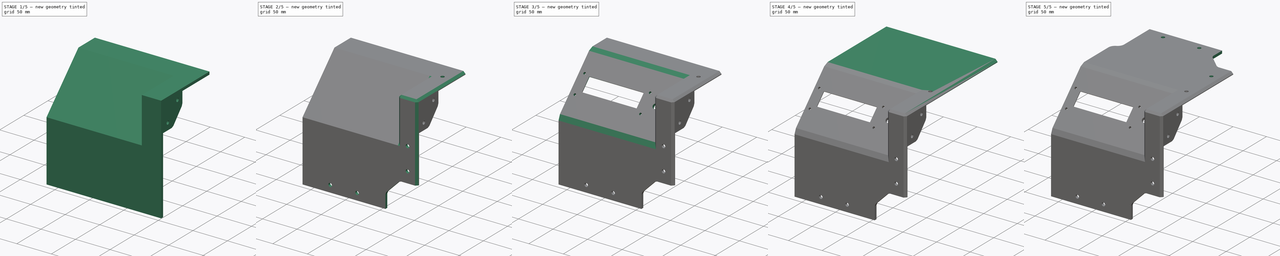
[diagram: build sequence overview — one tinted view per stage of 5, left to right]
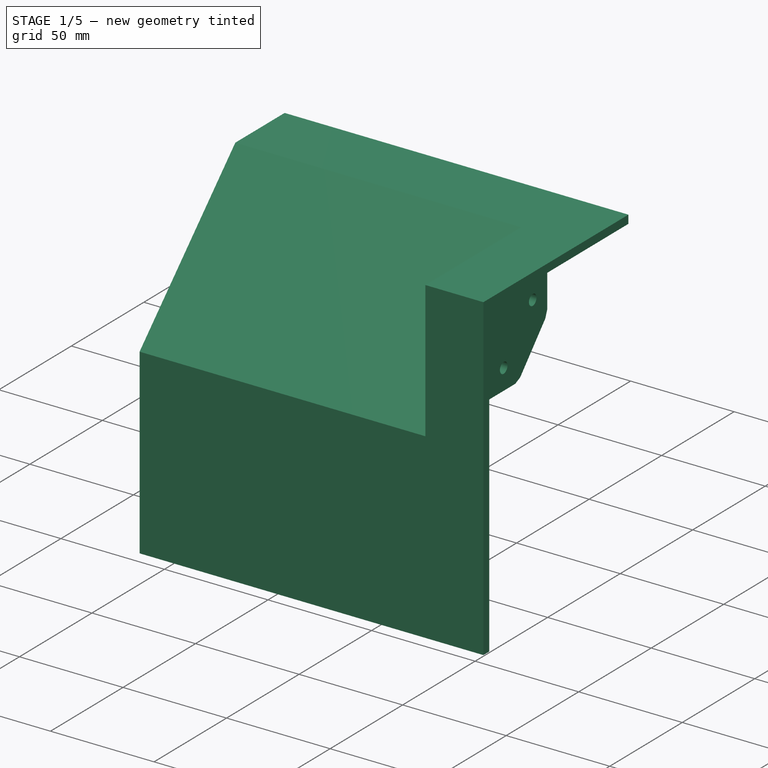
[diagram: stage 1 of 5 — iso view after this stage's code; geometry added in this stage tinted green]
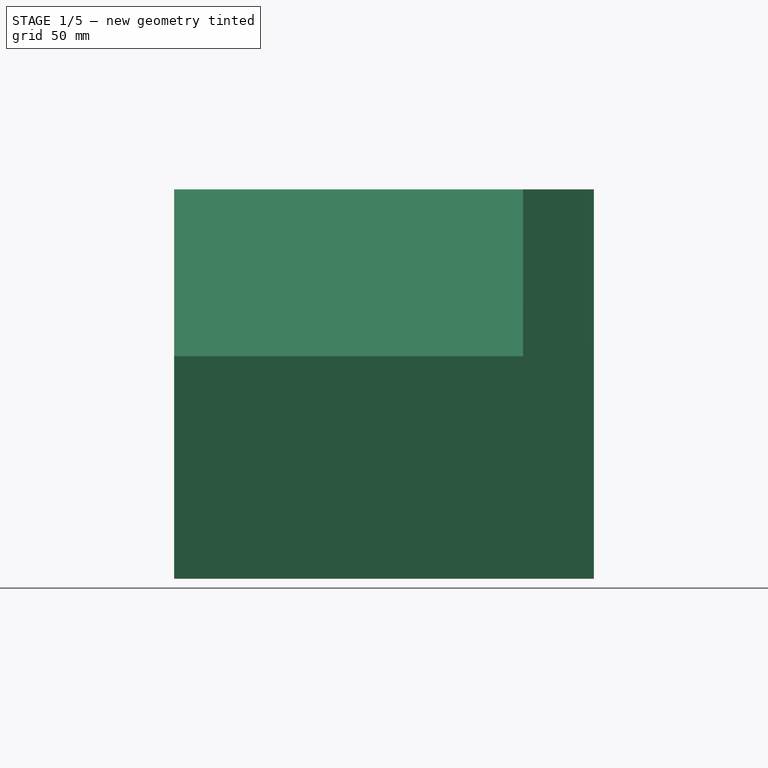
[diagram: stage 1 of 5 — front view after this stage's code; geometry added in this stage tinted green]
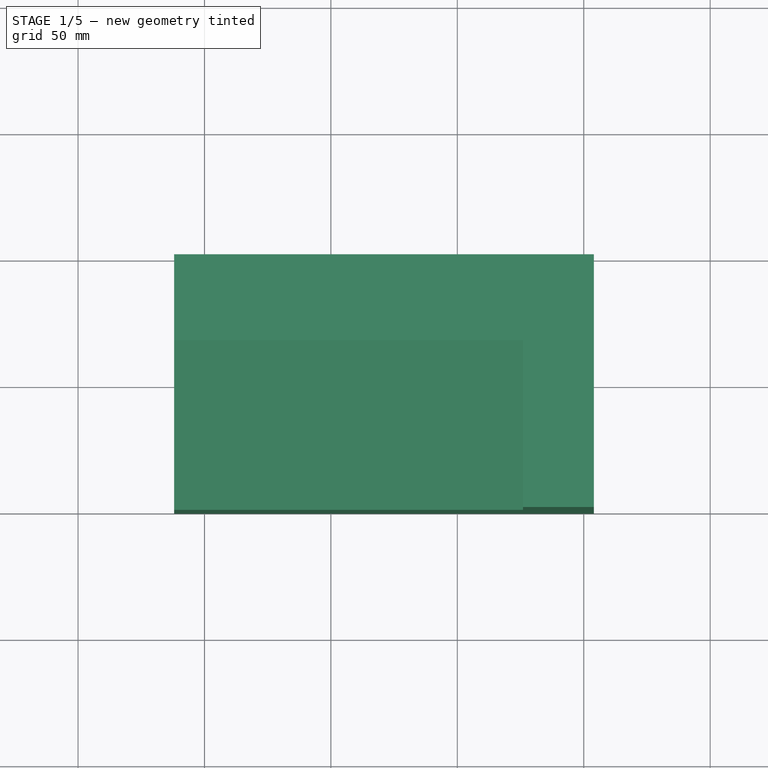
[diagram: stage 1 of 5 — top view after this stage's code; geometry added in this stage tinted green]
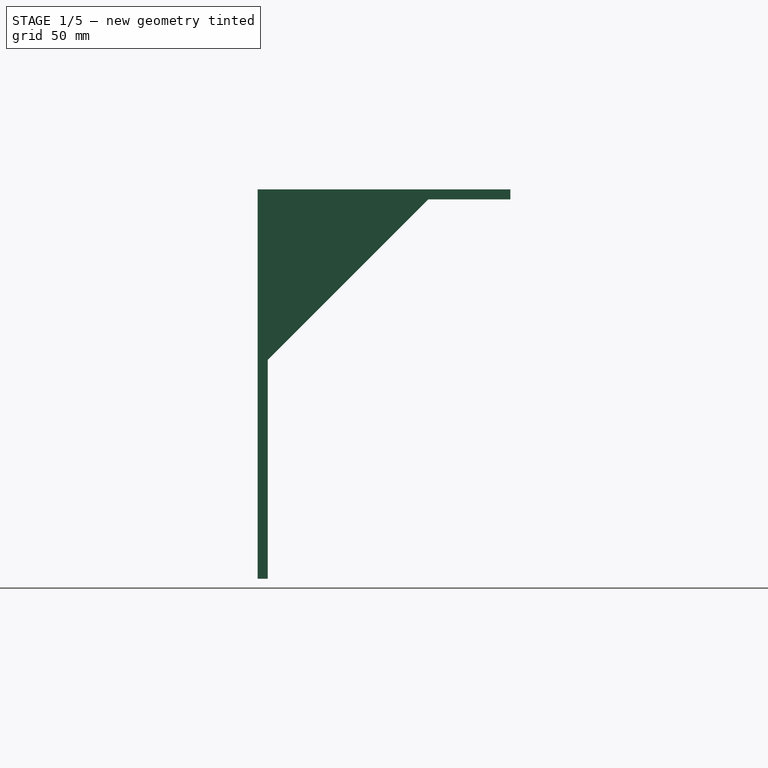
[diagram: stage 1 of 5 — right view after this stage's code; geometry added in this stage tinted green]
FCSTD DOCUMENT  (FreeCAD 1.0R39109 (Git))
Label: Screen_v3
License: All rights reserved
LicenseURL: https://en.wikipedia.org/wiki/All_rights_reserved
objects: Sketcher::SketchObject×14, PartDesign::Pad×7, PartDesign::Pocket×6, PartDesign::Hole×3, PartDesign::Chamfer×3, PartDesign::Fillet×1, PartDesign::Body×1
note: 89 computed .brp shape members not serialized (recipe doc carries the construction recipe); baked Part::Feature solids carry a one-line shape summary decoded from their .brp

FEATURE [Sketcher::SketchObject] Sketch
  ArcFitTolerance = 1e-06
  AttachmentSupport = -> [YZ_Plane]
  FullyConstrained = true
  MakeInternals = false
  MapMode = 5
  Placement = pos=(0,0,0) rot=(0.57735,0.57735,0.57735;2.0944rad)
  sketch-geometry (21):
    g0: LineSegment StartX=0 StartY=0 StartZ=0 EndX=0 EndY=-44 EndZ=0
    g1: LineSegment StartX=44 StartY=0 StartZ=0 EndX=0 EndY=0 EndZ=0
    g2: LineSegment StartX=0 StartY=-44 StartZ=0 EndX=21.9771 EndY=-44 EndZ=0
    g3: LineSegment StartX=44 StartY=0 StartZ=0 EndX=44 EndY=-20.0166 EndZ=0
    g4: LineSegment StartX=42.6658 StartY=-23.4676 StartZ=0 EndX=25.3608 EndY=-42.5032 EndZ=0
    g5: LineSegment [constr] StartX=24 StartY=-44 StartZ=0 EndX=24 EndY=-34 EndZ=0
    g6: LineSegment [constr] StartX=24 StartY=-34 StartZ=0 EndX=14 EndY=-34 EndZ=0
    g7: LineSegment [constr] StartX=14 StartY=-34 StartZ=0 EndX=14 EndY=-44 EndZ=0
    g8: LineSegment [constr] StartX=14 StartY=-44 StartZ=0 EndX=24 EndY=-44 EndZ=0
    g9: LineSegment [constr] StartX=44 StartY=-22 StartZ=0 EndX=44 EndY=-12 EndZ=0
    g10: LineSegment [constr] StartX=44 StartY=-12 StartZ=0 EndX=34 EndY=-12 EndZ=0
    g11: LineSegment [constr] StartX=34 StartY=-12 StartZ=0 EndX=34 EndY=-22 EndZ=0
    g12: LineSegment [constr] StartX=34 StartY=-22 StartZ=0 EndX=44 EndY=-22 EndZ=0
    g13: Circle CenterX=34 CenterY=-12 CenterZ=0 NormalX=0 NormalY=0 NormalZ=1 AngleXU=0 Radius=2.6
    g14: Circle CenterX=14 CenterY=-34 CenterZ=0 NormalX=0 NormalY=0 NormalZ=1 AngleXU=0 Radius=2.6
    g15: ArcOfCircle [constr] CenterX=21.9771 CenterY=-39.4271 CenterZ=0 NormalX=0 NormalY=0 NormalZ=1 AngleXU=0 Radius=4.57294 StartAngle=4.71239 EndAngle=5.54537
    g16: GeomPoint [constr] X=24 Y=-44 Z=0
    g17: LineSegment StartX=21.9771 StartY=-44 StartZ=0 EndX=25.3608 EndY=-42.5032 EndZ=0
    g18: ArcOfCircle [constr] CenterX=38.8696 CenterY=-20.0166 CenterZ=0 NormalX=0 NormalY=0 NormalZ=1 AngleXU=0 Radius=5.13039 StartAngle=5.54537 EndAngle=6.28319
    g19: GeomPoint [constr] X=44 Y=-22 Z=0
    g20: LineSegment StartX=42.6658 StartY=-23.4676 StartZ=0 EndX=44 EndY=-20.0166 EndZ=0
  constraints (52):
    c: Coincident(g1,g0)
    c: Vertical(g0)
    c: Horizontal(g1)
    c: Distance(g0,g1) = 44
    c: Distance(g0,g1) = 44
    c: Coincident(g0,g-1)
    c: Distance(g2,g16) = 24
    c: Coincident(g2,g0)
    c: Horizontal(g2)
    c: Distance(g3,g19) = 22
    c: Coincident(g3,g1)
    c: Vertical(g3)
    c: Coincident(g5,g6)
    c: Coincident(g6,g7)
    c: Coincident(g7,g8)
    c: Coincident(g8,g5)
    c: Vertical(g5)
    c: Vertical(g7)
    c: Horizontal(g6)
    c: Horizontal(g8)
    c: Distance(g5,g7) = 10
    c: Distance(g6,g8) = 10
    c: Coincident(g5,g16)
    c: Coincident(g9,g10)
    c: Coincident(g10,g11)
    c: Coincident(g11,g12)
    c: Coincident(g12,g9)
    c: Vertical(g9)
    c: Vertical(g11)
    c: Horizontal(g10)
    c: Horizontal(g12)
    c: Distance(g9,g11) = 10
    c: Distance(g10,g12) = 10
    c: Coincident(g9,g19)
    c: Diameter(g13) = 5.2
    c: Coincident(g13,g10)
    c: Diameter(g14) = 5.2
    c: Coincident(g14,g6)
    c: PointOnObject(g16,g2)
    c: PointOnObject(g16,g4)
    c: Tangent(g2,g15) = -1.5708
    c: Tangent(g4,g15) = 1.5708
    c: Coincident(g17,g2)
    c: Coincident(g17,g4)
    c: PointOnObject(g19,g4)
    c: PointOnObject(g19,g3)
    c: Tangent(g4,g18) = 1.5708
    c: Tangent(g3,g18) = 1.5708
    c: Coincident(g20,g4)
    c: Coincident(g20,g3)
    c: Distance(g17,g17) = 3.7
    c: Distance(g20,g20) = 3.7
FEATURE [PartDesign::Pad] Pad
  Direction = (1,0,0)
  Length = 4
  Length2 = 10
  Placement = pos=(0,0,0) rot=(1,1,1;2.0944rad)
  Profile = -> Sketch
  ReferenceAxis = -> Sketch [N_Axis]
  Refine = true
  Suppressed = false
  Type = 0
FEATURE [Sketcher::SketchObject] Sketch001
  ArcFitTolerance = 1e-06
  AttachmentSupport = -> [Pad]
  FullyConstrained = true
  MakeInternals = false
  MapMode = 5
  Placement = pos=(4,0,0) rot=(0.57735,0.57735,0.57735;2.0944rad)
  sketch-geometry (6):
    g0: LineSegment StartX=0 StartY=0 StartZ=0 EndX=100 EndY=0 EndZ=0
    g1: LineSegment StartX=100 StartY=0 StartZ=0 EndX=100 EndY=-4 EndZ=0
    g2: LineSegment StartX=100 StartY=-4 StartZ=0 EndX=4 EndY=-4 EndZ=0
    g3: LineSegment StartX=0 StartY=0 StartZ=0 EndX=0 EndY=-154 EndZ=0
    g4: LineSegment StartX=0 StartY=-154 StartZ=0 EndX=4 EndY=-154 EndZ=0
    g5: LineSegment StartX=4 StartY=-154 StartZ=0 EndX=4 EndY=-4 EndZ=0
  constraints (17):
    c: Distance(g0) = 100
    c: Coincident(g0,g-1)
    c: PointOnObject(g0,g-1)
    c: Distance(g1) = 4
    c: Coincident(g1,g0)
    c: Vertical(g1)
    c: Distance(g2) = 96
    c: Coincident(g2,g1)
    c: Horizontal(g2)
    c: Distance(g3) = 154
    c: Coincident(g3,g0)
    c: Vertical(g3)
    c: Distance(g4) = 4
    c: Coincident(g4,g3)
    c: Horizontal(g4)
    c: Coincident(g5,g4)
    c: Coincident(g5,g2)
FEATURE [PartDesign::Pad] Pad001
  BaseFeature = -> Pad
  Direction = (1,0,0)
  Length = 24
  Length2 = 10
  Placement = pos=(0,0,0) rot=(1,1,1;2.0944rad)
  Profile = -> Sketch001
  ReferenceAxis = -> Sketch001 [N_Axis]
  Refine = true
  Reversed = true
  Suppressed = false
  Type = 0
FEATURE [Sketcher::SketchObject] Sketch002
  ArcFitTolerance = 1e-06
  AttachmentSupport = -> [Pad001]
  FullyConstrained = true
  MakeInternals = false
  MapMode = 5
  Placement = pos=(-20,0,0) rot=(0.57735,0.57735,-0.57735;4.18879rad)
  sketch-geometry (34):
    g0: LineSegment StartX=0 StartY=0 StartZ=0 EndX=44 EndY=0 EndZ=0
    g1: LineSegment [constr] StartX=44 StartY=0 StartZ=0 EndX=44 EndY=44 EndZ=0
    g2: LineSegment [constr] StartX=44 StartY=44 StartZ=0 EndX=0 EndY=44 EndZ=0
    g3: LineSegment StartX=0 StartY=44 StartZ=0 EndX=0 EndY=0 EndZ=0
    g4: LineSegment [constr] StartX=0 StartY=44 StartZ=0 EndX=20.9176 EndY=44 EndZ=0
    g5: LineSegment [constr] StartX=44 StartY=0 StartZ=0 EndX=44 EndY=20.9176 EndZ=0
    g6: LineSegment [constr] StartX=43.2346 StartY=22.7654 StartZ=0 EndX=22.7654 EndY=43.2346 EndZ=0
    g7: LineSegment [constr] StartX=22 StartY=44 StartZ=0 EndX=12 EndY=44 EndZ=0
    g8: LineSegment [constr] StartX=12 StartY=44 StartZ=0 EndX=12 EndY=34 EndZ=0
    g9: LineSegment [constr] StartX=12 StartY=34 StartZ=0 EndX=22 EndY=34 EndZ=0
    g10: LineSegment [constr] StartX=22 StartY=34 StartZ=0 EndX=22 EndY=44 EndZ=0
    g11: LineSegment [constr] StartX=44 StartY=22 StartZ=0 EndX=34 EndY=22 EndZ=0
    g12: LineSegment [constr] StartX=34 StartY=22 StartZ=0 EndX=34 EndY=12 EndZ=0
    g13: LineSegment [constr] StartX=34 StartY=12 StartZ=0 EndX=44 EndY=12 EndZ=0
    g14: LineSegment [constr] StartX=44 StartY=12 StartZ=0 EndX=44 EndY=22 EndZ=0
    g15: ArcOfCircle [constr] CenterX=20.9176 CenterY=41.3869 CenterZ=0 NormalX=0 NormalY=0 NormalZ=1 AngleXU=0 Radius=2.61313 StartAngle=0.785398 EndAngle=1.5708
    g16: GeomPoint [constr] X=22 Y=44 Z=0
    g17: LineSegment [constr] StartX=22.7654 StartY=43.2346 StartZ=0 EndX=20.9176 EndY=44 EndZ=0
    g18: ArcOfCircle [constr] CenterX=41.3869 CenterY=20.9176 CenterZ=0 NormalX=0 NormalY=0 NormalZ=1 AngleXU=0 Radius=2.61313 StartAngle=3e-16 EndAngle=0.785398
    g19: GeomPoint [constr] X=44 Y=22 Z=0
    g20: LineSegment [constr] StartX=44 StartY=20.9176 StartZ=0 EndX=43.2346 EndY=22.7654 EndZ=0
    g21: LineSegment StartX=44 StartY=0 StartZ=0 EndX=100 EndY=0 EndZ=0
    g22: LineSegment StartX=100 StartY=0 StartZ=0 EndX=100 EndY=4 EndZ=0
    g23: LineSegment [constr] StartX=100 StartY=4 StartZ=0 EndX=48 EndY=4 EndZ=0
    g24: LineSegment StartX=0 StartY=44 StartZ=0 EndX=0 EndY=154 EndZ=0
    g25: LineSegment StartX=0 StartY=154 StartZ=0 EndX=4 EndY=154 EndZ=0
    g26: LineSegment [constr] StartX=4 StartY=154 StartZ=0 EndX=4 EndY=48 EndZ=0
    g27: LineSegment [constr] StartX=48 StartY=4 StartZ=0 EndX=48 EndY=23.5 EndZ=0
    g28: LineSegment [constr] StartX=4 StartY=48 StartZ=0 EndX=23.5 EndY=48 EndZ=0
    g29: LineSegment StartX=23.5 StartY=48 StartZ=0 EndX=48 EndY=23.5 EndZ=0
    g30: LineSegment StartX=23.5 StartY=48 StartZ=0 EndX=4 EndY=67.5 EndZ=0
    g31: LineSegment StartX=48 StartY=23.5 StartZ=0 EndX=67.5 EndY=4 EndZ=0
    g32: LineSegment StartX=4 StartY=67.5 StartZ=0 EndX=4 EndY=154 EndZ=0
    g33: LineSegment StartX=67.5 StartY=4 StartZ=0 EndX=100 EndY=4 EndZ=0
  constraints (87):
    c: Coincident(g0,g1)
    c: Coincident(g1,g2)
    c: Coincident(g2,g3)
    c: Coincident(g3,g0)
    c: Horizontal(g0)
    c: Horizontal(g2)
    c: Vertical(g1)
    c: Vertical(g3)
    c: Distance(g1,g3) = 44
    c: Distance(g0,g2) = 44
    c: Coincident(g0,g-1)
    c: Coincident(g4,g2)
    c: Symmetric(g2,g2,g16)
    c: Coincident(g5,g0)
    c: Symmetric(g1,g1,g19)
    c: Coincident(g7,g8)
    c: Coincident(g8,g9)
    c: Coincident(g9,g10)
    c: Coincident(g10,g7)
    c: Horizontal(g7)
    c: Horizontal(g9)
    c: Vertical(g8)
    c: Vertical(g10)
    c: Distance(g8,g10) = 10
    c: Distance(g7,g9) = 10
    c: Coincident(g7,g16)
    c: Coincident(g11,g12)
    c: Coincident(g12,g13)
    c: Coincident(g13,g14)
    c: Coincident(g14,g11)
    c: Horizontal(g11)
    c: Horizontal(g13)
    c: Vertical(g12)
    c: Vertical(g14)
    c: Distance(g12,g14) = 10
    c: Distance(g11,g13) = 10
    c: Coincident(g11,g19)
    c: PointOnObject(g16,g4)
    c: PointOnObject(g16,g6)
    c: Tangent(g4,g15) = 1.5708
    c: Tangent(g6,g15) = -1.5708
    c: Coincident(g17,g4)
    c: Coincident(g17,g6)
    c: PointOnObject(g19,g6)
    c: PointOnObject(g19,g5)
    c: Tangent(g6,g18) = -1.5708
    c: Tangent(g5,g18) = -1.5708
    c: Coincident(g20,g6)
    c: Coincident(g20,g5)
    c: Distance(g17,g17) = 2
    c: Distance(g20,g20) = 2
    c: Distance(g21) = 56
    c: Coincident(g21,g0)
    c: PointOnObject(g21,g-1)
    c: Distance(g22) = 4
    c: Coincident(g22,g21)
    c: Vertical(g22)
    c: Distance(g23) = 52
    c: Coincident(g23,g22)
    c: Horizontal(g23)
    c: Distance(g24) = 110
    c: Coincident(g24,g2)
    c: Vertical(g24)
    c: Distance(g25) = 4
    c: Coincident(g25,g24)
    c: Horizontal(g25)
    c: Distance(g26) = 106
    c: Coincident(g26,g25)
    c: Vertical(g26)
    c: Distance(g27) = 19.5
    c: Coincident(g27,g23)
    c: Vertical(g27)
    c: Distance(g28) = 19.5
    c: Coincident(g28,g26)
    c: Horizontal(g28)
    c: Coincident(g29,g28)
    c: Coincident(g29,g27)
    c: Angle(g-1,g30) = 2.35619
    c: Coincident(g30,g28)
    c: PointOnObject(g30,g26)
    c: Angle(g-1,g31) = -0.785398
    c: Coincident(g31,g27)
    c: PointOnObject(g31,g23)
    c: Coincident(g32,g30)
    c: Coincident(g32,g25)
    c: Coincident(g33,g31)
    c: Coincident(g33,g22)
FEATURE [PartDesign::Pad] Pad002
  BaseFeature = -> Pad001
  Direction = (-1,0,0)
  Length = 4
  Length2 = 10
  Placement = pos=(0,0,0) rot=(1,1,1;2.0944rad)
  Profile = -> Sketch002
  ReferenceAxis = -> Sketch002 [N_Axis]
  Refine = true
  Suppressed = false
  Type = 0
FEATURE [Sketcher::SketchObject] Sketch003
  ArcFitTolerance = 1e-06
  AttachmentSupport = -> [Pad002]
  FullyConstrained = true
  MakeInternals = false
  MapMode = 5
  Placement = pos=(-24,0,0) rot=(0.57735,0.57735,-0.57735;4.18879rad)
  sketch-geometry (39):
    g0: LineSegment [constr] StartX=0 StartY=0 StartZ=0 EndX=44 EndY=0 EndZ=0
    g1: LineSegment [constr] StartX=44 StartY=0 StartZ=0 EndX=44 EndY=44 EndZ=0
    g2: LineSegment [constr] StartX=44 StartY=44 StartZ=0 EndX=0 EndY=44 EndZ=0
    g3: LineSegment [constr] StartX=0 StartY=44 StartZ=0 EndX=0 EndY=0 EndZ=0
    g4: LineSegment [constr] StartX=0 StartY=44 StartZ=0 EndX=20.9176 EndY=44 EndZ=0
    g5: LineSegment [constr] StartX=44 StartY=0 StartZ=0 EndX=44 EndY=20.9176 EndZ=0
    g6: LineSegment [constr] StartX=43.2346 StartY=22.7654 StartZ=0 EndX=22.7654 EndY=43.2346 EndZ=0
    g7: LineSegment [constr] StartX=22 StartY=44 StartZ=0 EndX=12 EndY=44 EndZ=0
    g8: LineSegment [constr] StartX=12 StartY=44 StartZ=0 EndX=12 EndY=34 EndZ=0
    g9: LineSegment [constr] StartX=12 StartY=34 StartZ=0 EndX=22 EndY=34 EndZ=0
    g10: LineSegment [constr] StartX=22 StartY=34 StartZ=0 EndX=22 EndY=44 EndZ=0
    g11: LineSegment [constr] StartX=44 StartY=22 StartZ=0 EndX=34 EndY=22 EndZ=0
    g12: LineSegment [constr] StartX=34 StartY=22 StartZ=0 EndX=34 EndY=12 EndZ=0
    g13: LineSegment [constr] StartX=34 StartY=12 StartZ=0 EndX=44 EndY=12 EndZ=0
    g14: LineSegment [constr] StartX=44 StartY=12 StartZ=0 EndX=44 EndY=22 EndZ=0
    g15: ArcOfCircle [constr] CenterX=20.9176 CenterY=41.3869 CenterZ=0 NormalX=0 NormalY=0 NormalZ=1 AngleXU=0 Radius=2.61313 StartAngle=0.785398 EndAngle=1.5708
    g16: GeomPoint [constr] X=22 Y=44 Z=0
    g17: LineSegment [constr] StartX=22.7654 StartY=43.2346 StartZ=0 EndX=20.9176 EndY=44 EndZ=0
    g18: ArcOfCircle [constr] CenterX=41.3869 CenterY=20.9176 CenterZ=0 NormalX=0 NormalY=0 NormalZ=1 AngleXU=0 Radius=2.61313 StartAngle=0 EndAngle=0.785398
    g19: GeomPoint [constr] X=44 Y=22 Z=0
    g20: LineSegment [constr] StartX=44 StartY=20.9176 StartZ=0 EndX=43.2346 EndY=22.7654 EndZ=0
    g21: LineSegment [constr] StartX=44 StartY=0 StartZ=0 EndX=100 EndY=0 EndZ=0
    g22: LineSegment StartX=100 StartY=0 StartZ=0 EndX=100 EndY=4 EndZ=0
    g23: LineSegment [constr] StartX=100 StartY=4 StartZ=0 EndX=48 EndY=4 EndZ=0
    g24: LineSegment [constr] StartX=0 StartY=44 StartZ=0 EndX=0 EndY=154 EndZ=0
    g25: LineSegment StartX=0 StartY=154 StartZ=0 EndX=4 EndY=154 EndZ=0
    g26: LineSegment [constr] StartX=4 StartY=154 StartZ=0 EndX=4 EndY=48 EndZ=0
    g27: LineSegment [constr] StartX=48 StartY=4 StartZ=0 EndX=48 EndY=23.5 EndZ=0
    g28: LineSegment [constr] StartX=4 StartY=48 StartZ=0 EndX=23.5 EndY=48 EndZ=0
    g29: LineSegment StartX=23.5 StartY=48 StartZ=0 EndX=48 EndY=23.5 EndZ=0
    g30: LineSegment StartX=23.5 StartY=48 StartZ=0 EndX=4 EndY=67.5 EndZ=0
    g31: LineSegment StartX=48 StartY=23.5 StartZ=0 EndX=67.5 EndY=4 EndZ=0
    g32: LineSegment StartX=4 StartY=67.5 StartZ=0 EndX=4 EndY=154 EndZ=0
    g33: LineSegment StartX=67.5 StartY=4 StartZ=0 EndX=100 EndY=4 EndZ=0
    g34: LineSegment StartX=44 StartY=22 StartZ=0 EndX=66 EndY=0 EndZ=0
    g35: LineSegment StartX=22 StartY=44 StartZ=0 EndX=0 EndY=66 EndZ=0
    g36: LineSegment StartX=22 StartY=44 StartZ=0 EndX=44 EndY=22 EndZ=0
    g37: LineSegment StartX=0 StartY=66 StartZ=0 EndX=0 EndY=154 EndZ=0
    g38: LineSegment StartX=66 StartY=0 StartZ=0 EndX=100 EndY=0 EndZ=0
  constraints (99):
    c: Coincident(g0,g1)
    c: Coincident(g1,g2)
    c: Coincident(g2,g3)
    c: Coincident(g3,g0)
    c: Horizontal(g0)
    c: Horizontal(g2)
    c: Vertical(g1)
    c: Vertical(g3)
    c: Distance(g1,g3) = 44
    c: Distance(g0,g2) = 44
    c: Coincident(g0,g-1)
    c: Coincident(g4,g2)
    c: Symmetric(g2,g2,g16)
    c: Coincident(g5,g0)
    c: Symmetric(g1,g1,g19)
    c: Coincident(g7,g8)
    c: Coincident(g8,g9)
    c: Coincident(g9,g10)
    c: Coincident(g10,g7)
    c: Horizontal(g7)
    c: Horizontal(g9)
    c: Vertical(g8)
    c: Vertical(g10)
    c: Distance(g8,g10) = 10
    c: Distance(g7,g9) = 10
    c: Coincident(g7,g16)
    c: Coincident(g11,g12)
    c: Coincident(g12,g13)
    c: Coincident(g13,g14)
    c: Coincident(g14,g11)
    c: Horizontal(g11)
    c: Horizontal(g13)
    c: Vertical(g12)
    c: Vertical(g14)
    c: Distance(g12,g14) = 10
    c: Distance(g11,g13) = 10
    c: Coincident(g11,g19)
    c: PointOnObject(g16,g4)
    c: PointOnObject(g16,g6)
    c: Tangent(g4,g15) = 1.5708
    c: Tangent(g6,g15) = -1.5708
    c: Coincident(g17,g4)
    c: Coincident(g17,g6)
    c: PointOnObject(g19,g6)
    c: PointOnObject(g19,g5)
    c: Tangent(g6,g18) = -1.5708
    c: Tangent(g5,g18) = -1.5708
    c: Coincident(g20,g6)
    c: Coincident(g20,g5)
    c: Distance(g17,g17) = 2
    c: Distance(g20,g20) = 2
    c: Distance(g21) = 56
    c: Coincident(g21,g0)
    c: PointOnObject(g21,g-1)
    c: Distance(g22) = 4
    c: Coincident(g22,g21)
    c: Vertical(g22)
    c: Distance(g23) = 52
    c: Coincident(g23,g22)
    c: Horizontal(g23)
    c: Distance(g24) = 110
    c: Coincident(g24,g2)
    c: Vertical(g24)
    c: Distance(g25) = 4
    c: Coincident(g25,g24)
    c: Horizontal(g25)
    c: Distance(g26) = 106
    c: Coincident(g26,g25)
    c: Vertical(g26)
    c: Distance(g27) = 19.5
    c: Coincident(g27,g23)
    c: Vertical(g27)
    c: Distance(g28) = 19.5
    c: Coincident(g28,g26)
    c: Horizontal(g28)
    c: Coincident(g29,g28)
    c: Coincident(g29,g27)
    c: Angle(g-1,g30) = 2.35619
    c: Coincident(g30,g28)
    c: PointOnObject(g30,g26)
    c: Angle(g-1,g31) = -0.785398
    c: Coincident(g31,g27)
    c: PointOnObject(g31,g23)
    c: Coincident(g32,g30)
    c: Coincident(g32,g25)
    c: Coincident(g33,g31)
    c: Coincident(g33,g22)
    c: Angle(g-1,g34) = -0.785398
    c: Coincident(g34,g11)
    c: PointOnObject(g34,g21)
    c: Angle(g-1,g35) = 2.35619
    c: Coincident(g35,g7)
    c: PointOnObject(g35,g24)
    c: Coincident(g36,g7)
    c: Coincident(g36,g11)
    c: Coincident(g37,g35)
    c: Coincident(g37,g24)
    c: Coincident(g38,g34)
    c: Coincident(g38,g21)
FEATURE [PartDesign::Pad] Pad003
  BaseFeature = -> Pad002
  Direction = (-1,0,0)
  Length = 138
  Length2 = 10
  Placement = pos=(0,0,0) rot=(1,1,1;2.0944rad)
  Profile = -> Sketch003
  ReferenceAxis = -> Sketch003 [N_Axis]
  Refine = true
  Suppressed = false
  Type = 0
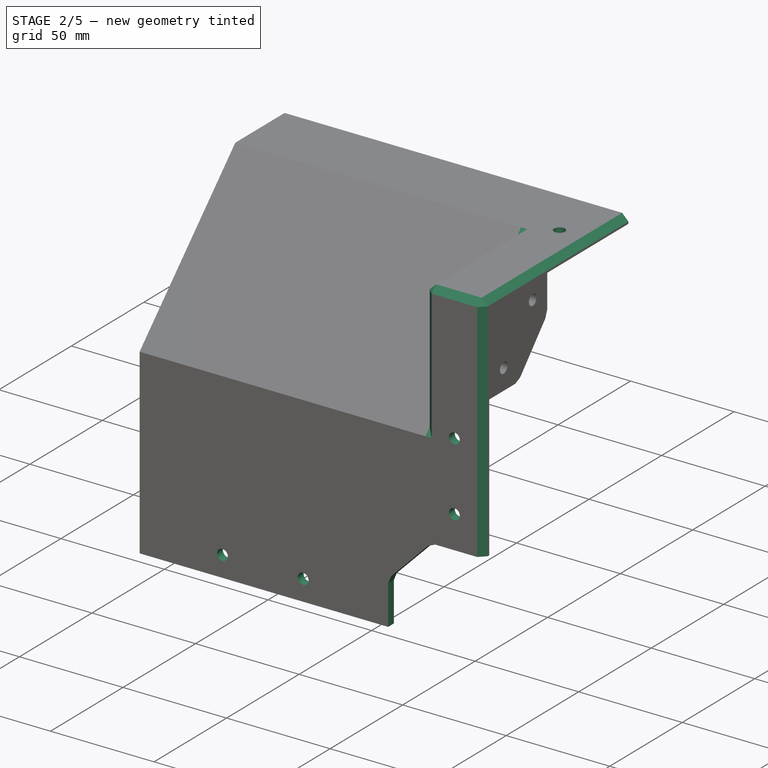
[diagram: stage 2 of 5 — iso view after this stage's code; geometry added in this stage tinted green]
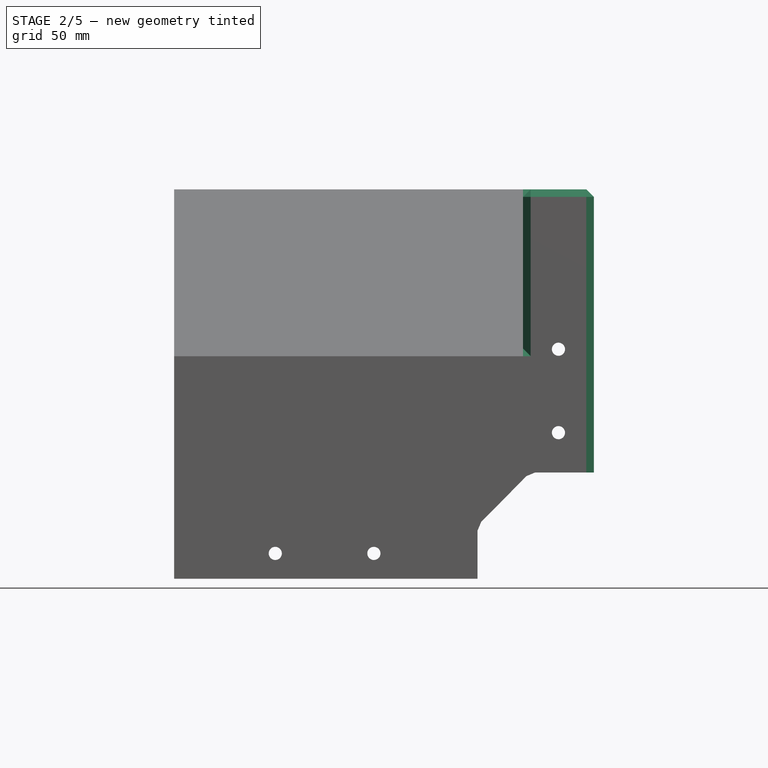
[diagram: stage 2 of 5 — front view after this stage's code; geometry added in this stage tinted green]
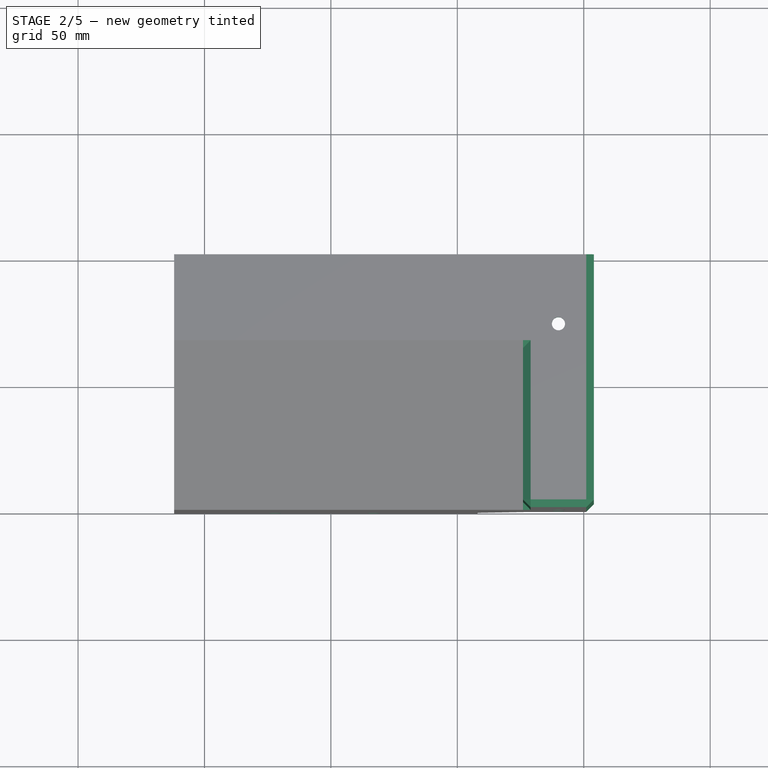
[diagram: stage 2 of 5 — top view after this stage's code; geometry added in this stage tinted green]
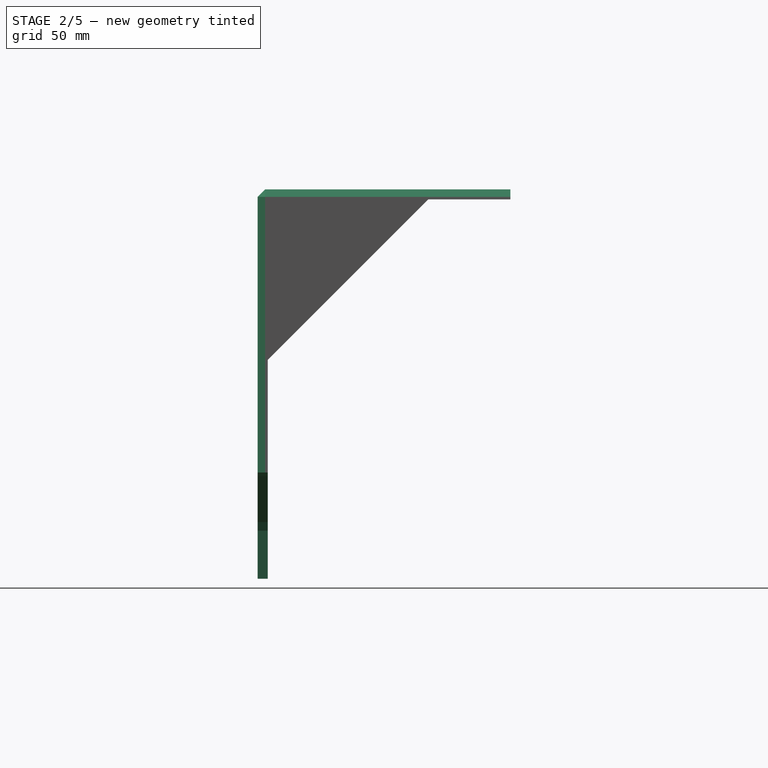
[diagram: stage 2 of 5 — right view after this stage's code; geometry added in this stage tinted green]
FEATURE [Sketcher::SketchObject] Sketch004
  ArcFitTolerance = 1e-06
  AttachmentSupport = -> [Pad003]
  FullyConstrained = true
  MakeInternals = false
  MapMode = 5
  Placement = pos=(0,-1.23e-14,0) rot=(0.57735,0.57735,-0.57735;2.0944rad)
  sketch-geometry (24):
    g0: LineSegment [constr] StartX=0 StartY=0 StartZ=0 EndX=154 EndY=0 EndZ=0
    g1: LineSegment [constr] StartX=154 StartY=0 StartZ=0 EndX=154 EndY=4 EndZ=0
    g2: LineSegment [constr] StartX=154 StartY=4 StartZ=0 EndX=0 EndY=4 EndZ=0
    g3: LineSegment [constr] StartX=0 StartY=4 StartZ=0 EndX=0 EndY=0 EndZ=0
    g4: LineSegment [constr] StartX=154 StartY=4 StartZ=0 EndX=115 EndY=4 EndZ=0
    g5: LineSegment [constr] StartX=115 StartY=4 StartZ=0 EndX=115 EndY=-38 EndZ=0
    g6: LineSegment [constr] StartX=115 StartY=-38 StartZ=0 EndX=154 EndY=-38 EndZ=0
    g7: LineSegment [constr] StartX=154 StartY=-38 StartZ=0 EndX=154 EndY=4 EndZ=0
    g8: LineSegment [constr] StartX=115 StartY=4 StartZ=0 EndX=115 EndY=-17 EndZ=0
    g9: LineSegment [constr] StartX=154 StartY=-38 StartZ=0 EndX=134.5 EndY=-38 EndZ=0
    g10: LineSegment [constr] StartX=134.5 StartY=-38 StartZ=0 EndX=115 EndY=-17 EndZ=0
    g11: LineSegment [constr] StartX=115 StartY=4 StartZ=0 EndX=112 EndY=4 EndZ=0
    g12: LineSegment [constr] StartX=154 StartY=-38 StartZ=0 EndX=154 EndY=-42 EndZ=0
    g13: LineSegment StartX=112 StartY=4 StartZ=0 EndX=112 EndY=-19.2352 EndZ=0
    g14: LineSegment StartX=154 StartY=-42 StartZ=0 EndX=135 EndY=-42 EndZ=0
    g15: LineSegment StartX=131.578 StartY=-40.5939 StartZ=0 EndX=113.426 EndY=-22.6495 EndZ=0
    g16: LineSegment StartX=112 StartY=4 StartZ=0 EndX=154 EndY=4 EndZ=0
    g17: LineSegment StartX=154 StartY=4 StartZ=0 EndX=154 EndY=-42 EndZ=0
    g18: ArcOfCircle [constr] CenterX=116.801 CenterY=-19.2352 CenterZ=0 NormalX=0 NormalY=0 NormalZ=1 AngleXU=0 Radius=4.801 StartAngle=3.14159 EndAngle=3.93274
    g19: GeomPoint [constr] X=112 Y=-21.24 Z=0
    g20: LineSegment StartX=112 StartY=-19.2352 StartZ=0 EndX=113.426 EndY=-22.6495 EndZ=0
    g21: ArcOfCircle [constr] CenterX=135 CenterY=-37.1319 CenterZ=0 NormalX=0 NormalY=0 NormalZ=1 AngleXU=0 Radius=4.86807 StartAngle=3.93274 EndAngle=4.71239
    g22: GeomPoint [constr] X=133 Y=-42 Z=0
    g23: LineSegment StartX=131.578 StartY=-40.5939 StartZ=0 EndX=135 EndY=-42 EndZ=0
  constraints (58):
    c: Coincident(g0,g1)
    c: Coincident(g1,g2)
    c: Coincident(g2,g3)
    c: Coincident(g3,g0)
    c: Horizontal(g0)
    c: Horizontal(g2)
    c: Vertical(g1)
    c: Vertical(g3)
    c: Distance(g1,g3) = 154
    c: Distance(g0,g2) = 4
    c: Coincident(g0,g-1)
    c: Coincident(g4,g5)
    c: Coincident(g5,g6)
    c: Coincident(g6,g7)
    c: Coincident(g7,g4)
    c: Horizontal(g4)
    c: Horizontal(g6)
    c: Vertical(g5)
    c: Vertical(g7)
    c: Distance(g5,g7) = 39
    c: Distance(g4,g6) = 42
    c: Coincident(g4,g1)
    c: Coincident(g8,g4)
    c: Symmetric(g5,g5,g8)
    c: Coincident(g9,g6)
    c: Symmetric(g6,g6,g9)
    c: Coincident(g10,g9)
    c: Coincident(g10,g8)
    c: Distance(g11) = 3
    c: Coincident(g11,g4)
    c: PointOnObject(g11,g2)
    c: Distance(g12) = 4
    c: Coincident(g12,g6)
    c: Vertical(g12)
    c: Distance(g13,g19) = 25.24
    c: Coincident(g13,g11)
    c: Vertical(g13)
    c: Distance(g14,g22) = 21
    c: Coincident(g14,g12)
    c: Horizontal(g14)
    c: Coincident(g16,g11)
    c: Coincident(g16,g1)
    c: Coincident(g17,g1)
    c: Coincident(g17,g12)
    c: PointOnObject(g19,g13)
    c: PointOnObject(g19,g15)
    c: Tangent(g13,g18) = -1.5708
    c: Tangent(g15,g18) = 1.5708
    c: Coincident(g20,g13)
    c: Coincident(g20,g15)
    c: PointOnObject(g22,g15)
    c: PointOnObject(g22,g14)
    c: Tangent(g15,g21) = 1.5708
    c: Tangent(g14,g21) = 1.5708
    c: Coincident(g23,g15)
    c: Coincident(g23,g14)
    c: Distance(g23,g23) = 3.7
    c: Distance(g20,g20) = 3.7
FEATURE [PartDesign::Pocket] Pocket
  BaseFeature = -> Pad003
  Direction = (0,1,0)
  Length = 5
  Length2 = 5
  Placement = pos=(0,0,0) rot=(1,1,1;2.0944rad)
  Profile = -> Sketch004
  ReferenceAxis = -> Sketch004 [N_Axis]
  Refine = true
  Suppressed = false
  Type = 0
FEATURE [Sketcher::SketchObject] Sketch005
  ArcFitTolerance = 1e-06
  AttachmentSupport = -> [Pocket]
  FullyConstrained = true
  MakeInternals = false
  MapMode = 5
  Placement = pos=(7.5e-15,33,-33) rot=(0.357407,0.357407,-0.862856;1.71777rad)
  sketch-geometry (27):
    g0: LineSegment [constr] StartX=0 StartY=0 StartZ=0 EndX=0 EndY=-24 EndZ=0
    g1: LineSegment [constr] StartX=0 StartY=-24 StartZ=0 EndX=0 EndY=-162 EndZ=0
    g2: LineSegment [constr] StartX=-18.75 StartY=-160.5 StartZ=0 EndX=18.75 EndY=-160.5 EndZ=0
    g3: LineSegment [constr] StartX=18.75 StartY=-160.5 StartZ=0 EndX=18.75 EndY=-25.5 EndZ=0
    g4: LineSegment [constr] StartX=18.75 StartY=-25.5 StartZ=0 EndX=-18.75 EndY=-25.5 EndZ=0
    g5: LineSegment [constr] StartX=-18.75 StartY=-25.5 StartZ=0 EndX=-18.75 EndY=-160.5 EndZ=0
    g6: GeomPoint [constr] X=0 Y=-93 Z=0
    g7: LineSegment [constr] StartX=-18.75 StartY=-160.5 StartZ=0 EndX=-14.25 EndY=-160.5 EndZ=0
    g8: LineSegment [constr] StartX=-14.25 StartY=-160.5 StartZ=0 EndX=-14.25 EndY=-156 EndZ=0
    g9: LineSegment [constr] StartX=-14.25 StartY=-156 StartZ=0 EndX=-18.75 EndY=-156 EndZ=0
    g10: LineSegment [constr] StartX=-18.75 StartY=-156 StartZ=0 EndX=-18.75 EndY=-160.5 EndZ=0
    g11: LineSegment [constr] StartX=-18.75 StartY=-25.5 StartZ=0 EndX=-18.75 EndY=-30 EndZ=0
    g12: LineSegment [constr] StartX=-18.75 StartY=-30 StartZ=0 EndX=-14.25 EndY=-30 EndZ=0
    g13: LineSegment [constr] StartX=-14.25 StartY=-30 StartZ=0 EndX=-14.25 EndY=-25.5 EndZ=0
    g14: LineSegment [constr] StartX=-14.25 StartY=-25.5 StartZ=0 EndX=-18.75 EndY=-25.5 EndZ=0
    g15: LineSegment [constr] StartX=18.75 StartY=-25.5 StartZ=0 EndX=14.25 EndY=-25.5 EndZ=0
    g16: LineSegment [constr] StartX=14.25 StartY=-25.5 StartZ=0 EndX=14.25 EndY=-30 EndZ=0
    g17: LineSegment [constr] StartX=14.25 StartY=-30 StartZ=0 EndX=18.75 EndY=-30 EndZ=0
    g18: LineSegment [constr] StartX=18.75 StartY=-30 StartZ=0 EndX=18.75 EndY=-25.5 EndZ=0
    g19: LineSegment [constr] StartX=18.75 StartY=-160.5 StartZ=0 EndX=18.75 EndY=-156 EndZ=0
    g20: LineSegment [constr] StartX=18.75 StartY=-156 StartZ=0 EndX=14.25 EndY=-156 EndZ=0
    g21: LineSegment [constr] StartX=14.25 StartY=-156 StartZ=0 EndX=14.25 EndY=-160.5 EndZ=0
    g22: LineSegment [constr] StartX=14.25 StartY=-160.5 StartZ=0 EndX=18.75 EndY=-160.5 EndZ=0
    g23: Circle [constr] CenterX=14.25 CenterY=-156 CenterZ=0 NormalX=0 NormalY=0 NormalZ=1 AngleXU=0 Radius=1.55
    g24: Circle [constr] CenterX=14.25 CenterY=-30 CenterZ=0 NormalX=0 NormalY=0 NormalZ=1 AngleXU=0 Radius=1.55
    g25: Circle [constr] CenterX=-14.25 CenterY=-30 CenterZ=0 NormalX=0 NormalY=0 NormalZ=1 AngleXU=0 Radius=1.55
    g26: Circle [constr] CenterX=-14.25 CenterY=-156 CenterZ=0 NormalX=0 NormalY=0 NormalZ=1 AngleXU=0 Radius=1.55
  constraints (70):
    c: Distance(g0) = 24
    c: Coincident(g0,g-1)
    c: Vertical(g0)
    c: Distance(g1) = 138
    c: Coincident(g1,g0)
    c: Vertical(g1)
    c: Coincident(g2,g3)
    c: Coincident(g3,g4)
    c: Coincident(g4,g5)
    c: Coincident(g5,g2)
    c: Horizontal(g2)
    c: Horizontal(g4)
    c: Vertical(g3)
    c: Vertical(g5)
    c: Symmetric(g4,g2,g6)
    c: Distance(g3,g5) = 37.5
    c: Distance(g2,g4) = 135
    c: Symmetric(g1,g1,g6)
    c: Coincident(g7,g8)
    c: Coincident(g8,g9)
    c: Coincident(g9,g10)
    c: Coincident(g10,g7)
    c: Horizontal(g7)
    c: Horizontal(g9)
    c: Vertical(g8)
    c: Vertical(g10)
    c: Distance(g8,g10) = 4.5
    c: Distance(g7,g9) = 4.5
    c: Coincident(g7,g2)
    c: Coincident(g11,g12)
    c: Coincident(g12,g13)
    c: Coincident(g13,g14)
    c: Coincident(g14,g11)
    c: Vertical(g11)
    c: Vertical(g13)
    c: Horizontal(g12)
    c: Horizontal(g14)
    c: Distance(g11,g13) = 4.5
    c: Distance(g12,g14) = 4.5
    c: Coincident(g11,g4)
    c: Coincident(g15,g16)
    c: Coincident(g16,g17)
    c: Coincident(g17,g18)
    c: Coincident(g18,g15)
    c: Horizontal(g15)
    c: Horizontal(g17)
    c: Vertical(g16)
    c: Vertical(g18)
    c: Distance(g16,g18) = 4.5
    c: Distance(g15,g17) = 4.5
    c: Coincident(g15,g3)
    c: Coincident(g19,g20)
    c: Coincident(g20,g21)
    c: Coincident(g21,g22)
    c: Coincident(g22,g19)
    c: Vertical(g19)
    c: Vertical(g21)
    c: Horizontal(g20)
    c: Horizontal(g22)
    c: Distance(g19,g21) = 4.5
    c: Distance(g20,g22) = 4.5
    c: Coincident(g19,g2)
    c: Diameter(g23) = 3.1
    c: Coincident(g23,g20)
    c: Diameter(g24) = 3.1
    c: Coincident(g24,g16)
    c: Diameter(g25) = 3.1
    c: Coincident(g25,g12)
    c: Diameter(g26) = 3.1
    c: Coincident(g26,g8)
FEATURE [Sketcher::SketchObject] Sketch006
  ArcFitTolerance = 1e-06
  AttachmentSupport = -> [Pocket]
  FullyConstrained = true
  MakeInternals = false
  MapMode = 5
  Placement = pos=(0,-1.23e-14,0) rot=(0.57735,0.57735,-0.57735;2.0944rad)
  sketch-geometry (30):
    g0: LineSegment [constr] StartX=0 StartY=0 StartZ=0 EndX=112.75 EndY=0 EndZ=0
    g1: LineSegment [constr] StartX=112.75 StartY=0 StartZ=0 EndX=112.75 EndY=4 EndZ=0
    g2: LineSegment [constr] StartX=112.75 StartY=4 StartZ=0 EndX=0 EndY=4 EndZ=0
    g3: LineSegment [constr] StartX=0 StartY=4 StartZ=0 EndX=0 EndY=0 EndZ=0
    g4: LineSegment [constr] StartX=0 StartY=4 StartZ=0 EndX=0 EndY=-24 EndZ=0
    g5: LineSegment [constr] StartX=0 StartY=-24 StartZ=0 EndX=112.75 EndY=-24 EndZ=0
    g6: LineSegment [constr] StartX=112.75 StartY=-24 StartZ=0 EndX=112.75 EndY=4 EndZ=0
    g7: LineSegment [constr] StartX=112.75 StartY=4 StartZ=0 EndX=0 EndY=4 EndZ=0
    g8: LineSegment [constr] StartX=0 StartY=4 StartZ=0 EndX=0 EndY=-24 EndZ=0
    g9: LineSegment [constr] StartX=0 StartY=-24 StartZ=0 EndX=44 EndY=-24 EndZ=0
    g10: LineSegment [constr] StartX=44 StartY=-24 StartZ=0 EndX=44 EndY=4 EndZ=0
    g11: LineSegment [constr] StartX=44 StartY=4 StartZ=0 EndX=0 EndY=4 EndZ=0
    g12: LineSegment [constr] StartX=44 StartY=-10 StartZ=0 EndX=112.75 EndY=-10 EndZ=0
    g13: LineSegment [constr] StartX=44 StartY=-10 StartZ=0 EndX=63.25 EndY=-10 EndZ=0
    g14: LineSegment [constr] StartX=112.75 StartY=-10 StartZ=0 EndX=96.25 EndY=-10 EndZ=0
    g15: Circle CenterX=63.25 CenterY=-10 CenterZ=0 NormalX=0 NormalY=0 NormalZ=1 AngleXU=0 Radius=2.6
    g16: Circle CenterX=96.25 CenterY=-10 CenterZ=0 NormalX=0 NormalY=0 NormalZ=1 AngleXU=0 Radius=2.6
    g17: LineSegment [constr] StartX=0 StartY=0 StartZ=0 EndX=0 EndY=-162 EndZ=0
    g18: LineSegment [constr] StartX=0 StartY=-162 StartZ=0 EndX=154 EndY=-162 EndZ=0
    g19: LineSegment [constr] StartX=154 StartY=-162 StartZ=0 EndX=154 EndY=0 EndZ=0
    g20: LineSegment [constr] StartX=154 StartY=0 StartZ=0 EndX=0 EndY=0 EndZ=0
    g21: LineSegment [constr] StartX=154 StartY=-162 StartZ=0 EndX=154 EndY=-43 EndZ=0
    g22: LineSegment [constr] StartX=154 StartY=-43 StartZ=0 EndX=134 EndY=-43 EndZ=0
    g23: LineSegment [constr] StartX=134 StartY=-43 StartZ=0 EndX=134 EndY=-162 EndZ=0
    g24: LineSegment [constr] StartX=134 StartY=-162 StartZ=0 EndX=154 EndY=-162 EndZ=0
    g25: LineSegment [constr] StartX=144 StartY=-162 StartZ=0 EndX=144 EndY=-43 EndZ=0
    g26: LineSegment [constr] StartX=144 StartY=-162 StartZ=0 EndX=144 EndY=-122 EndZ=0
    g27: LineSegment [constr] StartX=144 StartY=-43 StartZ=0 EndX=144 EndY=-83 EndZ=0
    g28: Circle CenterX=144 CenterY=-122 CenterZ=0 NormalX=0 NormalY=0 NormalZ=1 AngleXU=0 Radius=2.6
    g29: Circle CenterX=144 CenterY=-83 CenterZ=0 NormalX=0 NormalY=0 NormalZ=1 AngleXU=0 Radius=2.6
  constraints (80):
    c: Coincident(g0,g1)
    c: Coincident(g1,g2)
    c: Coincident(g2,g3)
    c: Coincident(g3,g0)
    c: Horizontal(g0)
    c: Horizontal(g2)
    c: Vertical(g1)
    c: Vertical(g3)
    c: Distance(g1,g3) = 112.75
    c: Distance(g0,g2) = 4
    c: Coincident(g0,g-1)
    c: Coincident(g4,g5)
    c: Coincident(g5,g6)
    c: Coincident(g6,g7)
    c: Coincident(g7,g4)
    c: Vertical(g4)
    c: Vertical(g6)
    c: Horizontal(g5)
    c: Horizontal(g7)
    c: Distance(g4,g6) = 112.75
    c: Distance(g5,g7) = 28
    c: Coincident(g4,g2)
    c: Coincident(g8,g9)
    c: Coincident(g9,g10)
    c: Coincident(g10,g11)
    c: Coincident(g11,g8)
    c: Vertical(g8)
    c: Vertical(g10)
    c: Horizontal(g9)
    c: Horizontal(g11)
    c: Distance(g8,g10) = 44
    c: Coincident(g8,g2)
    c: PointOnObject(g9,g5)
    c: Symmetric(g10,g10,g12)
    c: Symmetric(g6,g6,g12)
    c: Distance(g13) = 19.25
    c: Coincident(g13,g12)
    c: PointOnObject(g13,g12)
    c: Distance(g14) = 16.5
    c: Coincident(g14,g12)
    c: PointOnObject(g14,g12)
    c: Diameter(g15) = 5.2
    c: Coincident(g15,g13)
    c: Diameter(g16) = 5.2
    c: Coincident(g16,g14)
    c: Coincident(g17,g18)
    c: Coincident(g18,g19)
    c: Coincident(g19,g20)
    c: Coincident(g20,g17)
    c: Vertical(g17)
    c: Vertical(g19)
    c: Horizontal(g18)
    c: Horizontal(g20)
    c: Distance(g17,g19) = 154
    c: Distance(g18,g20) = 162
    c: Coincident(g17,g0)
    c: Coincident(g21,g22)
    c: Coincident(g22,g23)
    c: Coincident(g23,g24)
    c: Coincident(g24,g21)
    c: Vertical(g21)
    c: Vertical(g23)
    c: Horizontal(g22)
    c: Horizontal(g24)
    c: Distance(g21,g23) = 20
    c: Distance(g22,g24) = 119
    c: Coincident(g21,g18)
    c: PointOnObject(g25,g18)
    c: Symmetric(g22,g22,g25)
    c: Vertical(g25)
    c: Distance(g26) = 40
    c: Coincident(g26,g25)
    c: PointOnObject(g26,g25)
    c: Distance(g27) = 40
    c: Coincident(g27,g25)
    c: PointOnObject(g27,g25)
    c: Diameter(g28) = 5.2
    c: Coincident(g28,g26)
    c: Diameter(g29) = 5.2
    c: Coincident(g29,g27)
FEATURE [PartDesign::Hole] Hole
  BaseFeature = -> Pocket
  CustomThreadClearance = 0
  Depth = 25
  DepthType = 0
  Diameter = 5.2
  DrillForDepth = false
  DrillPoint = 1
  DrillPointAngle = 118
  HoleCutCountersinkAngle = 90
  HoleCutCustomValues = false
  HoleCutDepth = 0
  HoleCutDiameter = 6.1
  HoleCutType = 0
  ModelThread = false
  Placement = pos=(0,0,0) rot=(1,1,1;2.0944rad)
  Profile = -> Sketch006
  Refine = true
  Suppressed = false
  Tapered = false
  TaperedAngle = 90
  ThreadClass = 0
  ThreadDepth = 25
  ThreadDepthType = 0
  ThreadDirection = 0
  ThreadFit = 0
  ThreadSize = 0
  ThreadType = 0
  Threaded = false
  UseCustomThreadClearance = false
FEATURE [Sketcher::SketchObject] Sketch007
  ArcFitTolerance = 1e-06
  AttachmentSupport = -> [Hole]
  FullyConstrained = true
  MakeInternals = false
  MapMode = 5
  Placement = pos=(0,0,7e-15) rot=(0,0,-1;1.5708rad)
  sketch-geometry (14):
    g0: LineSegment [constr] StartX=0 StartY=0 StartZ=0 EndX=0 EndY=4 EndZ=0
    g1: LineSegment [constr] StartX=0 StartY=4 StartZ=0 EndX=-100 EndY=4 EndZ=0
    g2: LineSegment [constr] StartX=-100 StartY=4 StartZ=0 EndX=-100 EndY=-24 EndZ=0
    g3: LineSegment [constr] StartX=-100 StartY=-24 StartZ=0 EndX=0 EndY=-24 EndZ=0
    g4: LineSegment [constr] StartX=0 StartY=-24 StartZ=0 EndX=0 EndY=4 EndZ=0
    g5: LineSegment [constr] StartX=-100 StartY=-10 StartZ=0 EndX=0 EndY=-10 EndZ=0
    g6: LineSegment [constr] StartX=0 StartY=4 StartZ=0 EndX=-44 EndY=4 EndZ=0
    g7: LineSegment [constr] StartX=-44 StartY=4 StartZ=0 EndX=-44 EndY=-24 EndZ=0
    g8: LineSegment [constr] StartX=-44 StartY=-24 StartZ=0 EndX=0 EndY=-24 EndZ=0
    g9: LineSegment [constr] StartX=0 StartY=-24 StartZ=0 EndX=0 EndY=4 EndZ=0
    g10: LineSegment [constr] StartX=0 StartY=-10 StartZ=0 EndX=-72.5 EndY=-10 EndZ=0
    g11: Circle CenterX=-72.5 CenterY=-10 CenterZ=0 NormalX=0 NormalY=0 NormalZ=1 AngleXU=0 Radius=2.6
    g12: LineSegment [constr] StartX=-72.5 StartY=-10 StartZ=0 EndX=-125.5 EndY=-10 EndZ=0
    g13: Circle CenterX=-125.5 CenterY=-10 CenterZ=0 NormalX=0 NormalY=0 NormalZ=1 AngleXU=0 Radius=2.6
  constraints (37):
    c: Distance(g0) = 4
    c: Coincident(g0,g-1)
    c: PointOnObject(g0,g-2)
    c: Coincident(g1,g2)
    c: Coincident(g2,g3)
    c: Coincident(g3,g4)
    c: Coincident(g4,g1)
    c: Horizontal(g1)
    c: Horizontal(g3)
    c: Vertical(g2)
    c: Vertical(g4)
    c: Distance(g2,g4) = 100
    c: Distance(g1,g3) = 28
    c: Coincident(g1,g0)
    c: Symmetric(g2,g2,g5)
    c: Symmetric(g4,g4,g5)
    c: Coincident(g6,g7)
    c: Coincident(g7,g8)
    c: Coincident(g8,g9)
    c: Coincident(g9,g6)
    c: Horizontal(g6)
    c: Horizontal(g8)
    c: Vertical(g7)
    c: Vertical(g9)
    c: Distance(g7,g9) = 44
    c: Coincident(g6,g0)
    c: PointOnObject(g7,g3)
    c: Distance(g10) = 72.5
    c: Coincident(g10,g5)
    c: PointOnObject(g10,g5)
    c: Diameter(g11) = 5.2
    c: Coincident(g11,g10)
    c: Distance(g12) = 53
    c: Coincident(g12,g10)
    c: Horizontal(g12)
    c: Diameter(g13) = 5.2
    c: Coincident(g13,g12)
FEATURE [PartDesign::Hole] Hole001
  BaseFeature = -> Hole
  CustomThreadClearance = 0
  Depth = 25
  DepthType = 0
  Diameter = 5.2
  DrillForDepth = false
  DrillPoint = 1
  DrillPointAngle = 118
  HoleCutCountersinkAngle = 90
  HoleCutCustomValues = false
  HoleCutDepth = 0
  HoleCutDiameter = 6.1
  HoleCutType = 0
  ModelThread = false
  Placement = pos=(0,0,0) rot=(1,1,1;2.0944rad)
  Profile = -> Sketch007
  Refine = true
  Suppressed = false
  Tapered = false
  TaperedAngle = 90
  ThreadClass = 0
  ThreadDepth = 25
  ThreadDepthType = 0
  ThreadDirection = 0
  ThreadFit = 0
  ThreadSize = 0
  ThreadType = 0
  Threaded = false
  UseCustomThreadClearance = false
FEATURE [PartDesign::Chamfer] Chamfer
  Angle = 45
  Base = -> Hole001 [Edge66,Edge53,Edge52,Edge21,Edge22]
  BaseFeature = -> Hole001
  ChamferType = 0
  FlipDirection = false
  Placement = pos=(0,0,0) rot=(1,1,1;2.0944rad)
  Refine = true
  Size = 3
  Size2 = 1
  SupportTransform = false
  Suppressed = false
  UseAllEdges = false
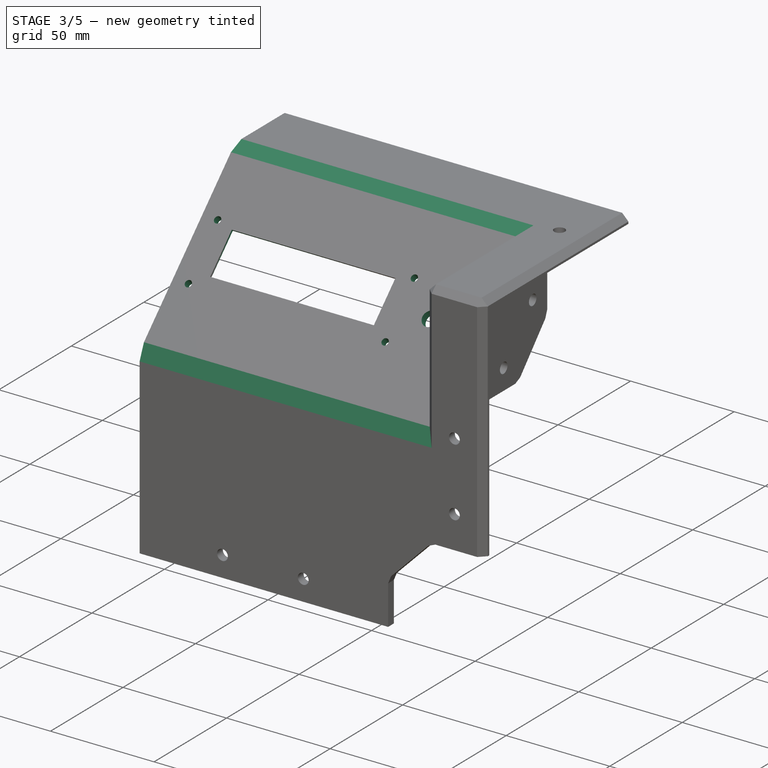
[diagram: stage 3 of 5 — iso view after this stage's code; geometry added in this stage tinted green]
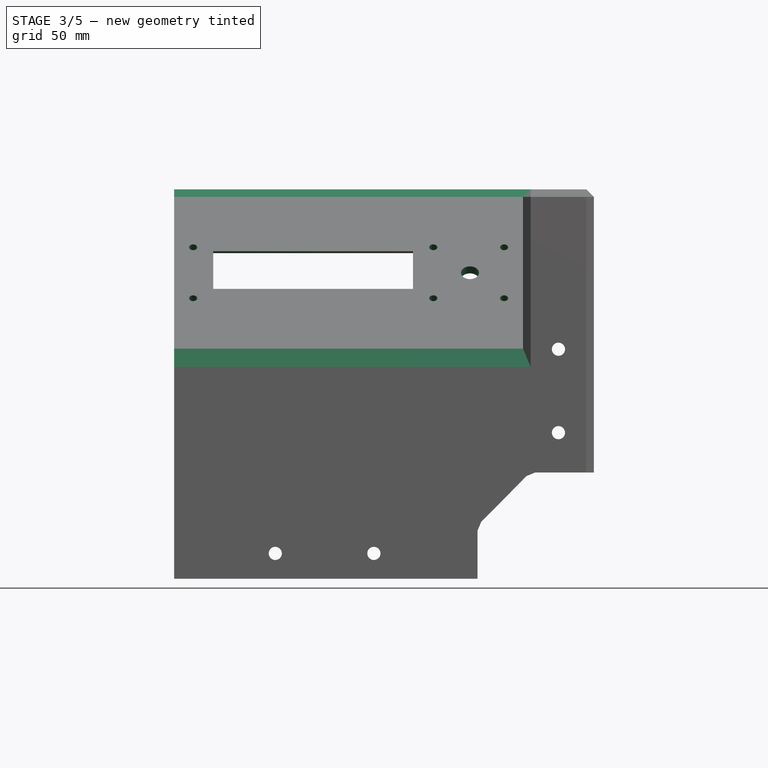
[diagram: stage 3 of 5 — front view after this stage's code; geometry added in this stage tinted green]
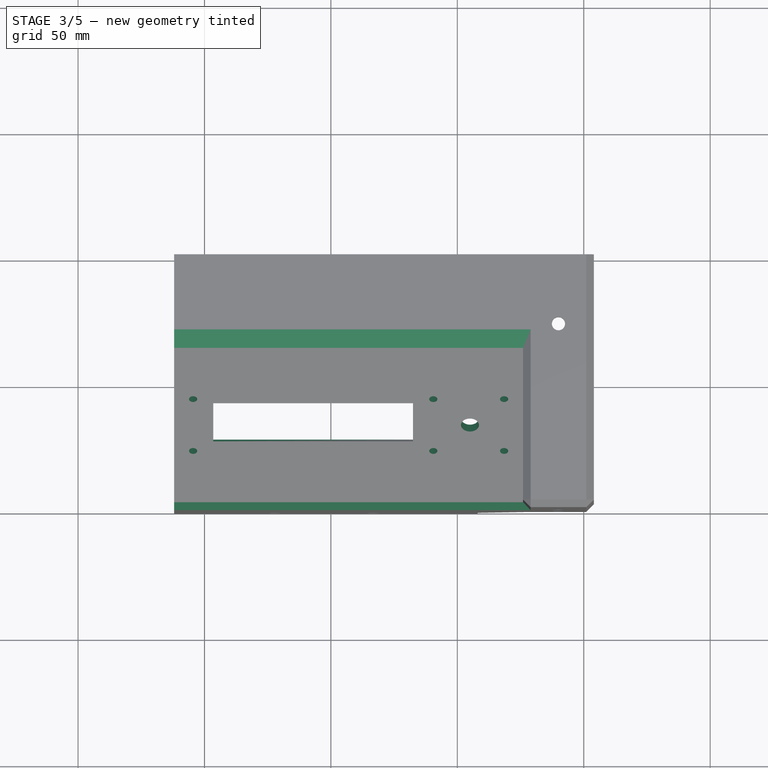
[diagram: stage 3 of 5 — top view after this stage's code; geometry added in this stage tinted green]
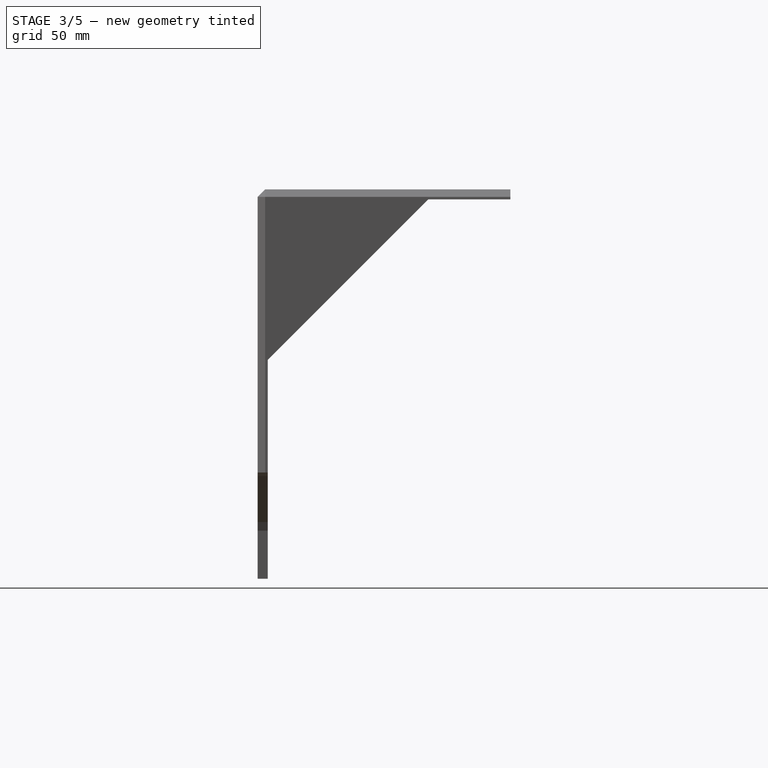
[diagram: stage 3 of 5 — right view after this stage's code; geometry added in this stage tinted green]
FEATURE [PartDesign::Chamfer] Chamfer001
  Angle = 45
  Base = -> Chamfer [Edge67,Edge65,Edge98,Edge96]
  BaseFeature = -> Chamfer
  ChamferType = 0
  FlipDirection = false
  Placement = pos=(0,0,0) rot=(1,1,1;2.0944rad)
  Refine = true
  Size = 4.24
  Size2 = 1
  SupportTransform = false
  Suppressed = false
  UseAllEdges = false
FEATURE [Sketcher::SketchObject] Sketch008
  ArcFitTolerance = 1e-06
  AttachmentSupport = -> [Chamfer001]
  FullyConstrained = true
  MakeInternals = false
  MapMode = 5
  Placement = pos=(1.85e-14,33,-33) rot=(0.357407,0.357407,-0.862856;1.71777rad)
  sketch-geometry (80):
    g0: LineSegment [constr] StartX=0 StartY=0 StartZ=0 EndX=0 EndY=-24 EndZ=0
    g1: LineSegment [constr] StartX=0 StartY=-24 StartZ=0 EndX=0 EndY=-162 EndZ=0
    g2: LineSegment [constr] StartX=-18.75 StartY=-159 StartZ=0 EndX=18.75 EndY=-159 EndZ=0
    g3: LineSegment [constr] StartX=18.75 StartY=-159 StartZ=0 EndX=18.75 EndY=-27 EndZ=0
    g4: LineSegment [constr] StartX=18.75 StartY=-27 StartZ=0 EndX=-18.75 EndY=-27 EndZ=0
    g5: LineSegment [constr] StartX=-18.75 StartY=-27 StartZ=0 EndX=-18.75 EndY=-159 EndZ=0
    g6: GeomPoint [constr] X=0 Y=-93 Z=0
    g7: LineSegment [constr] StartX=-18.75 StartY=-159 StartZ=0 EndX=-14.25 EndY=-159 EndZ=0
    g8: LineSegment [constr] StartX=-14.25 StartY=-159 StartZ=0 EndX=-14.25 EndY=-154.5 EndZ=0
    g9: LineSegment [constr] StartX=-14.25 StartY=-154.5 StartZ=0 EndX=-18.75 EndY=-154.5 EndZ=0
    g10: LineSegment [constr] StartX=-18.75 StartY=-154.5 StartZ=0 EndX=-18.75 EndY=-159 EndZ=0
    g11: LineSegment [constr] StartX=18.75 StartY=-159 StartZ=0 EndX=18.75 EndY=-154.5 EndZ=0
    g12: LineSegment [constr] StartX=18.75 StartY=-154.5 StartZ=0 EndX=14.25 EndY=-154.5 EndZ=0
    g13: LineSegment [constr] StartX=14.25 StartY=-154.5 StartZ=0 EndX=14.25 EndY=-159 EndZ=0
    g14: LineSegment [constr] StartX=14.25 StartY=-159 StartZ=0 EndX=18.75 EndY=-159 EndZ=0
    g15: LineSegment [constr] StartX=18.75 StartY=-27 StartZ=0 EndX=14.25 EndY=-27 EndZ=0
    g16: LineSegment [constr] StartX=14.25 StartY=-27 StartZ=0 EndX=14.25 EndY=-31.5 EndZ=0
    g17: LineSegment [constr] StartX=14.25 StartY=-31.5 StartZ=0 EndX=18.75 EndY=-31.5 EndZ=0
    g18: LineSegment [constr] StartX=18.75 StartY=-31.5 StartZ=0 EndX=18.75 EndY=-27 EndZ=0
    g19: LineSegment [constr] StartX=-18.75 StartY=-27 StartZ=0 EndX=-18.75 EndY=-31.5 EndZ=0
    g20: LineSegment [constr] StartX=-18.75 StartY=-31.5 StartZ=0 EndX=-14.25 EndY=-31.5 EndZ=0
    g21: LineSegment [constr] StartX=-14.25 StartY=-31.5 StartZ=0 EndX=-14.25 EndY=-27 EndZ=0
    g22: LineSegment [constr] StartX=-14.25 StartY=-27 StartZ=0 EndX=-18.75 EndY=-27 EndZ=0
    g23: Circle [constr] CenterX=-14.25 CenterY=-31.5 CenterZ=0 NormalX=0 NormalY=0 NormalZ=1 AngleXU=0 Radius=1.6
    g24: Circle [constr] CenterX=14.25 CenterY=-31.5 CenterZ=0 NormalX=0 NormalY=0 NormalZ=1 AngleXU=0 Radius=1.6
    g25: Circle [constr] CenterX=-14.25 CenterY=-154.5 CenterZ=0 NormalX=0 NormalY=0 NormalZ=1 AngleXU=0 Radius=1.6
    g26: Circle [constr] CenterX=14.25 CenterY=-154.5 CenterZ=0 NormalX=0 NormalY=0 NormalZ=1 AngleXU=0 Radius=1.6
    g27: LineSegment [constr] StartX=-14.25 StartY=-31.5 StartZ=0 EndX=-14.25 EndY=-59.5 EndZ=0
    g28: LineSegment [constr] StartX=-14.25 StartY=-59.5 StartZ=0 EndX=14.25 EndY=-59.5 EndZ=0
    g29: LineSegment [constr] StartX=14.25 StartY=-59.5 StartZ=0 EndX=14.25 EndY=-31.5 EndZ=0
    g30: LineSegment [constr] StartX=14.25 StartY=-31.5 StartZ=0 EndX=-14.25 EndY=-31.5 EndZ=0
    g31: Circle [constr] CenterX=-14.25 CenterY=-59.5 CenterZ=0 NormalX=0 NormalY=0 NormalZ=1 AngleXU=0 Radius=1.6
    g32: Circle [constr] CenterX=14.25 CenterY=-59.5 CenterZ=0 NormalX=0 NormalY=0 NormalZ=1 AngleXU=0 Radius=1.6
    g33: Circle [constr] CenterX=-14.25 CenterY=-59.5 CenterZ=0 NormalX=0 NormalY=0 NormalZ=1 AngleXU=0 Radius=2.375
    g34: Circle [constr] CenterX=-14.25 CenterY=-31.5 CenterZ=0 NormalX=0 NormalY=0 NormalZ=1 AngleXU=0 Radius=2.75
    g35: Circle [constr] CenterX=14.25 CenterY=-31.5 CenterZ=0 NormalX=0 NormalY=0 NormalZ=1 AngleXU=0 Radius=2.75
    g36: Circle [constr] CenterX=14.25 CenterY=-59.5 CenterZ=0 NormalX=0 NormalY=0 NormalZ=1 AngleXU=0 Radius=2.75
    g37: Circle [constr] CenterX=-14.25 CenterY=-154.5 CenterZ=0 NormalX=0 NormalY=0 NormalZ=1 AngleXU=0 Radius=2.375
    g38: Circle [constr] CenterX=14.25 CenterY=-154.5 CenterZ=0 NormalX=0 NormalY=0 NormalZ=1 AngleXU=0 Radius=2.375
    g39: LineSegment [constr] StartX=-14.25 StartY=-59.5 StartZ=0 EndX=14.25 EndY=-31.5 EndZ=0
    g40: LineSegment [constr] StartX=-14.25 StartY=-31.5 StartZ=0 EndX=14.25 EndY=-59.5 EndZ=0
    g41: LineSegment [constr] StartX=-14.25 StartY=-31.5 StartZ=0 EndX=-14.25 EndY=-45 EndZ=0
    g42: LineSegment [constr] StartX=-14.25 StartY=-45 StartZ=0 EndX=5.3e-15 EndY=-45 EndZ=0
    g43: LineSegment [constr] StartX=4.5e-15 StartY=-45 StartZ=0 EndX=4.5e-15 EndY=-31.5 EndZ=0
    g44: LineSegment [constr] StartX=4.5e-15 StartY=-31.5 StartZ=0 EndX=-14.25 EndY=-31.5 EndZ=0
    g45: Circle CenterX=4.5e-15 CenterY=-45 CenterZ=0 NormalX=0 NormalY=0 NormalZ=1 AngleXU=0 Radius=3.55
    g46: LineSegment [constr] StartX=-11 StartY=-62.693 StartZ=0 EndX=11 EndY=-62.693 EndZ=0
    g47: LineSegment [constr] StartX=11 StartY=-62.693 StartZ=0 EndX=11 EndY=-56.307 EndZ=0
    g48: LineSegment [constr] StartX=11 StartY=-56.307 StartZ=0 EndX=-11 EndY=-56.307 EndZ=0
    g49: LineSegment [constr] StartX=-11 StartY=-56.307 StartZ=0 EndX=-11 EndY=-62.693 EndZ=0
    g50: GeomPoint [constr] X=4.5e-15 Y=-59.5 Z=0
    g51: LineSegment [constr] StartX=-14.25 StartY=-154.5 StartZ=0 EndX=14.25 EndY=-154.5 EndZ=0
    g52: LineSegment [constr] StartX=14.25 StartY=-154.5 StartZ=0 EndX=14.25 EndY=-59.5 EndZ=0
    g53: LineSegment [constr] StartX=14.25 StartY=-59.5 StartZ=0 EndX=-14.25 EndY=-59.5 EndZ=0
    g54: LineSegment [constr] StartX=-14.25 StartY=-59.5 StartZ=0 EndX=-14.25 EndY=-154.5 EndZ=0
    g55: LineSegment [constr] StartX=-14.25 StartY=-154.5 StartZ=0 EndX=14.25 EndY=-59.5 EndZ=0
    g56: LineSegment [constr] StartX=-15.5 StartY=-152.051 StartZ=0 EndX=15.5 EndY=-152.051 EndZ=0
    g57: LineSegment [constr] StartX=15.5 StartY=-152.051 StartZ=0 EndX=15.5 EndY=-61.9495 EndZ=0
    g58: LineSegment [constr] StartX=15.5 StartY=-61.9495 StartZ=0 EndX=-15.5 EndY=-61.9495 EndZ=0
    g59: LineSegment [constr] StartX=-15.5 StartY=-61.9495 StartZ=0 EndX=-15.5 EndY=-152.051 EndZ=0
    g60: GeomPoint [constr] X=3.2e-15 Y=-107 Z=0
    g61: LineSegment [constr] StartX=-15.5 StartY=-152.051 StartZ=0 EndX=-12 EndY=-152.051 EndZ=0
    g62: LineSegment [constr] StartX=-12 StartY=-152.051 StartZ=0 EndX=-12 EndY=-146.551 EndZ=0
    g63: LineSegment [constr] StartX=-12 StartY=-146.551 StartZ=0 EndX=-15.5 EndY=-146.551 EndZ=0
    g64: LineSegment [constr] StartX=-15.5 StartY=-146.551 StartZ=0 EndX=-15.5 EndY=-152.051 EndZ=0
    g65: LineSegment [constr] StartX=-12 StartY=-152.051 StartZ=0 EndX=-12 EndY=-61.9495 EndZ=0
    g66: LineSegment [constr] StartX=-12 StartY=-146.551 StartZ=0 EndX=10 EndY=-146.551 EndZ=0
    g67: LineSegment [constr] StartX=10 StartY=-146.551 StartZ=0 EndX=10 EndY=-67.5505 EndZ=0
    g68: LineSegment [constr] StartX=10 StartY=-67.5505 StartZ=0 EndX=-12 EndY=-67.5505 EndZ=0
    g69: LineSegment [constr] StartX=-12 StartY=-67.5505 StartZ=0 EndX=-12 EndY=-146.551 EndZ=0
    g70: Circle [constr] CenterX=14.25 CenterY=-59.5 CenterZ=0 NormalX=0 NormalY=0 NormalZ=1 AngleXU=0 Radius=2.375
    g71: LineSegment StartX=-15.5 StartY=-152.051 StartZ=0 EndX=15.5 EndY=-152.051 EndZ=0
    g72: LineSegment StartX=15.5 StartY=-152.051 StartZ=0 EndX=15.5 EndY=-61.9495 EndZ=0
    g73: LineSegment [constr] StartX=15.5 StartY=-61.9495 StartZ=0 EndX=-15.5 EndY=-61.9495 EndZ=0
    g74: LineSegment StartX=-15.5 StartY=-61.9495 StartZ=0 EndX=-15.5 EndY=-152.051 EndZ=0
    g75: LineSegment StartX=-15.5 StartY=-61.9495 StartZ=0 EndX=-11.5 EndY=-61.9495 EndZ=0
    g76: LineSegment StartX=-11.5 StartY=-61.9495 StartZ=0 EndX=-11.5 EndY=-56.1995 EndZ=0
    g77: LineSegment StartX=15.5 StartY=-61.9495 StartZ=0 EndX=11.5 EndY=-61.9495 EndZ=0
    g78: LineSegment StartX=11.5 StartY=-61.9495 StartZ=0 EndX=11.5 EndY=-56.1995 EndZ=0
    g79: LineSegment StartX=-11.5 StartY=-56.1995 StartZ=0 EndX=11.5 EndY=-56.1995 EndZ=0
  constraints (201):
    c: Distance(g0) = 24
    c: Coincident(g0,g-1)
    c: PointOnObject(g0,g-2)
    c: Distance(g1) = 138
    c: Coincident(g1,g0)
    c: Vertical(g1)
    c: Coincident(g2,g3)
    c: Coincident(g3,g4)
    c: Coincident(g4,g5)
    c: Coincident(g5,g2)
    c: Horizontal(g2)
    c: Horizontal(g4)
    c: Vertical(g3)
    c: Vertical(g5)
    c: Symmetric(g4,g2,g6)
    c: Distance(g3,g5) = 37.5
    c: Distance(g2,g4) = 132
    c: Symmetric(g1,g1,g6)
    c: Coincident(g7,g8)
    c: Coincident(g8,g9)
    c: Coincident(g9,g10)
    c: Coincident(g10,g7)
    c: Horizontal(g7)
    c: Horizontal(g9)
    c: Vertical(g8)
    c: Vertical(g10)
    c: Distance(g8,g10) = 4.5
    c: Distance(g7,g9) = 4.5
    c: Coincident(g7,g2)
    c: Coincident(g11,g12)
    c: Coincident(g12,g13)
    c: Coincident(g13,g14)
    c: Coincident(g14,g11)
    c: Vertical(g11)
    c: Vertical(g13)
    c: Horizontal(g12)
    c: Horizontal(g14)
    c: Distance(g11,g13) = 4.5
    c: Distance(g12,g14) = 4.5
    c: Coincident(g11,g2)
    c: Coincident(g15,g16)
    c: Coincident(g16,g17)
    c: Coincident(g17,g18)
    c: Coincident(g18,g15)
    c: Horizontal(g15)
    c: Horizontal(g17)
    c: Vertical(g16)
    c: Vertical(g18)
    c: Distance(g16,g18) = 4.5
    c: Distance(g15,g17) = 4.5
    c: Coincident(g15,g3)
    c: Coincident(g19,g20)
    c: Coincident(g20,g21)
    c: Coincident(g21,g22)
    c: Coincident(g22,g19)
    c: Vertical(g19)
    c: Vertical(g21)
    c: Horizontal(g20)
    c: Horizontal(g22)
    c: Distance(g19,g21) = 4.5
    c: Distance(g20,g22) = 4.5
    c: Coincident(g19,g4)
    c: Diameter(g23) = 3.2
    c: Coincident(g23,g20)
    c: Diameter(g24) = 3.2
    c: Coincident(g24,g16)
    c: Diameter(g25) = 3.2
    c: Coincident(g25,g8)
    c: Diameter(g26) = 3.2
    c: Coincident(g26,g12)
    c: Coincident(g27,g28)
    c: Coincident(g28,g29)
    c: Coincident(g29,g30)
    c: Coincident(g30,g27)
    c: Vertical(g27)
    c: Vertical(g29)
    c: Horizontal(g28)
    c: Horizontal(g30)
    c: Distance(g27,g29) = 28.5
    c: Distance(g28,g30) = 28
    c: Coincident(g27,g20)
    c: Diameter(g31) = 3.2
    c: Coincident(g31,g27)
    c: Diameter(g32) = 3.2
    c: Coincident(g32,g28)
    c: Diameter(g33) = 4.75
    c: Coincident(g33,g27)
    c: Diameter(g34) = 5.5
    c: Coincident(g34,g20)
    c: Diameter(g35) = 5.5
    c: Coincident(g35,g16)
    c: Diameter(g36) = 5.5
    c: Coincident(g36,g28)
    c: Diameter(g37) = 4.75
    c: Coincident(g37,g8)
    c: Diameter(g38) = 4.75
    c: Coincident(g38,g12)
    c: Coincident(g39,g27)
    c: Coincident(g39,g16)
    c: Coincident(g40,g20)
    c: Coincident(g40,g28)
    c: Coincident(g41,g42)
    c: Coincident(g42,g43)
    c: Coincident(g43,g44)
    c: Coincident(g44,g41)
    c: Vertical(g41)
    c: Vertical(g43)
    c: Horizontal(g42)
    c: Horizontal(g44)
    c: Distance(g41,g43) = 14.25
    c: Distance(g42,g44) = 13.5
    c: Coincident(g41,g20)
    c: Diameter(g45) = 7.1
    c: Coincident(g45,g42)
    c: Coincident(g46,g47)
    c: Coincident(g47,g48)
    c: Coincident(g48,g49)
    c: Coincident(g49,g46)
    c: Horizontal(g46)
    c: Horizontal(g48)
    c: Vertical(g47)
    c: Vertical(g49)
    c: Symmetric(g48,g46,g50)
    c: Distance(g47,g49) = 22
    c: Symmetric(g28,g28,g50)
    c: PointOnObject(g47,g40)
    c: Coincident(g51,g52)
    c: Coincident(g52,g53)
    c: Coincident(g53,g54)
    c: Coincident(g54,g51)
    c: Horizontal(g51)
    c: Horizontal(g53)
    c: Vertical(g52)
    c: Vertical(g54)
    c: Coincident(g51,g8)
    c: Coincident(g52,g28)
    c: Coincident(g55,g8)
    c: Coincident(g55,g28)
    c: Coincident(g56,g57)
    c: Coincident(g57,g58)
    c: Coincident(g58,g59)
    c: Coincident(g59,g56)
    c: Horizontal(g56)
    c: Horizontal(g58)
    c: Vertical(g57)
    c: Vertical(g59)
    c: Symmetric(g58,g56,g60)
    c: Distance(g57,g59) = 31
    c: Symmetric(g55,g55,g60)
    c: PointOnObject(g57,g36)
    c: Coincident(g61,g62)
    c: Coincident(g62,g63)
    c: Coincident(g63,g64)
    c: Coincident(g64,g61)
    c: Horizontal(g61)
    c: Horizontal(g63)
    c: Vertical(g62)
    c: Vertical(g64)
    c: Distance(g62,g64) = 3.5
    c: Distance(g61,g63) = 5.5
    c: Coincident(g61,g56)
    c: Coincident(g65,g61)
    c: PointOnObject(g65,g58)
    c: Vertical(g65)
    c: Coincident(g66,g67)
    c: Coincident(g67,g68)
    c: Coincident(g68,g69)
    c: Coincident(g69,g66)
    c: Horizontal(g66)
    c: Horizontal(g68)
    c: Vertical(g67)
    c: Vertical(g69)
    c: Distance(g67,g69) = 22
    c: Distance(g66,g68) = 79
    c: Coincident(g66,g62)
    c: Diameter(g70) = 4.75
    c: Coincident(g70,g28)
    c: Coincident(g71,g72)
    c: Coincident(g72,g73)
    c: Coincident(g73,g74)
    c: Coincident(g74,g71)
    c: Horizontal(g71)
    c: Horizontal(g73)
    c: Vertical(g72)
    c: Vertical(g74)
    c: Coincident(g71,g56)
    c: Coincident(g72,g57)
    c: Distance(g75) = 4
    c: Coincident(g75,g58)
    c: PointOnObject(g75,g58)
    c: Distance(g76) = 5.75
    c: Coincident(g76,g75)
    c: Vertical(g76)
    c: Distance(g77) = 4
    c: Coincident(g77,g57)
    c: PointOnObject(g77,g58)
    c: Distance(g78) = 5.75
    c: Coincident(g78,g77)
    c: Vertical(g78)
    c: Coincident(g79,g76)
    c: Coincident(g79,g78)
FEATURE [PartDesign::Pocket] Pocket001
  BaseFeature = -> Chamfer001
  Direction = (1e-16,0.707107,-0.707107)
  Length = 5
  Length2 = 5
  Placement = pos=(0,0,0) rot=(1,1,1;2.0944rad)
  Profile = -> Sketch008
  ReferenceAxis = -> Sketch008 [N_Axis]
  Refine = true
  Suppressed = false
  Type = 0
FEATURE [Sketcher::SketchObject] Sketch009
  ArcFitTolerance = 1e-06
  AttachmentSupport = -> [Pocket001]
  FullyConstrained = true
  MakeInternals = false
  MapMode = 5
  Placement = pos=(2.94e-14,35.75,-35.75) rot=(0.678598,0.678598,0.281085;3.68962rad)
  sketch-geometry (71):
    g0: LineSegment [constr] StartX=0 StartY=0 StartZ=0 EndX=0 EndY=-24 EndZ=0
    g1: LineSegment [constr] StartX=0 StartY=-24 StartZ=0 EndX=0 EndY=-162 EndZ=0
    g2: LineSegment [constr] StartX=-18.75 StartY=-159 StartZ=0 EndX=18.75 EndY=-159 EndZ=0
    g3: LineSegment [constr] StartX=18.75 StartY=-159 StartZ=0 EndX=18.75 EndY=-27 EndZ=0
    g4: LineSegment [constr] StartX=18.75 StartY=-27 StartZ=0 EndX=-18.75 EndY=-27 EndZ=0
    g5: LineSegment [constr] StartX=-18.75 StartY=-27 StartZ=0 EndX=-18.75 EndY=-159 EndZ=0
    g6: GeomPoint [constr] X=0 Y=-93 Z=0
    g7: LineSegment [constr] StartX=-18.75 StartY=-159 StartZ=0 EndX=-14.25 EndY=-159 EndZ=0
    g8: LineSegment [constr] StartX=-14.25 StartY=-159 StartZ=0 EndX=-14.25 EndY=-154.5 EndZ=0
    g9: LineSegment [constr] StartX=-14.25 StartY=-154.5 StartZ=0 EndX=-18.75 EndY=-154.5 EndZ=0
    g10: LineSegment [constr] StartX=-18.75 StartY=-154.5 StartZ=0 EndX=-18.75 EndY=-159 EndZ=0
    g11: LineSegment [constr] StartX=18.75 StartY=-159 StartZ=0 EndX=18.75 EndY=-154.5 EndZ=0
    g12: LineSegment [constr] StartX=18.75 StartY=-154.5 StartZ=0 EndX=14.25 EndY=-154.5 EndZ=0
    g13: LineSegment [constr] StartX=14.25 StartY=-154.5 StartZ=0 EndX=14.25 EndY=-159 EndZ=0
    g14: LineSegment [constr] StartX=14.25 StartY=-159 StartZ=0 EndX=18.75 EndY=-159 EndZ=0
    g15: LineSegment [constr] StartX=18.75 StartY=-27 StartZ=0 EndX=14.25 EndY=-27 EndZ=0
    g16: LineSegment [constr] StartX=14.25 StartY=-27 StartZ=0 EndX=14.25 EndY=-31.5 EndZ=0
    g17: LineSegment [constr] StartX=14.25 StartY=-31.5 StartZ=0 EndX=18.75 EndY=-31.5 EndZ=0
    g18: LineSegment [constr] StartX=18.75 StartY=-31.5 StartZ=0 EndX=18.75 EndY=-27 EndZ=0
    g19: LineSegment [constr] StartX=-18.75 StartY=-27 StartZ=0 EndX=-18.75 EndY=-31.5 EndZ=0
    g20: LineSegment [constr] StartX=-18.75 StartY=-31.5 StartZ=0 EndX=-14.25 EndY=-31.5 EndZ=0
    g21: LineSegment [constr] StartX=-14.25 StartY=-31.5 StartZ=0 EndX=-14.25 EndY=-27 EndZ=0
    g22: LineSegment [constr] StartX=-14.25 StartY=-27 StartZ=0 EndX=-18.75 EndY=-27 EndZ=0
    g23: Circle [constr] CenterX=-14.25 CenterY=-31.5 CenterZ=0 NormalX=0 NormalY=0 NormalZ=1 AngleXU=0 Radius=1.6
    g24: Circle [constr] CenterX=14.25 CenterY=-31.5 CenterZ=0 NormalX=0 NormalY=0 NormalZ=1 AngleXU=0 Radius=1.6
    g25: Circle [constr] CenterX=-14.25 CenterY=-154.5 CenterZ=0 NormalX=0 NormalY=0 NormalZ=1 AngleXU=0 Radius=1.6
    g26: Circle [constr] CenterX=14.25 CenterY=-154.5 CenterZ=0 NormalX=0 NormalY=0 NormalZ=1 AngleXU=0 Radius=1.6
    g27: LineSegment [constr] StartX=-14.25 StartY=-31.5 StartZ=0 EndX=-14.25 EndY=-59.5 EndZ=0
    g28: LineSegment [constr] StartX=-14.25 StartY=-59.5 StartZ=0 EndX=14.25 EndY=-59.5 EndZ=0
    g29: LineSegment [constr] StartX=14.25 StartY=-59.5 StartZ=0 EndX=14.25 EndY=-31.5 EndZ=0
    g30: LineSegment [constr] StartX=14.25 StartY=-31.5 StartZ=0 EndX=-14.25 EndY=-31.5 EndZ=0
    g31: Circle [constr] CenterX=-14.25 CenterY=-59.5 CenterZ=0 NormalX=0 NormalY=0 NormalZ=1 AngleXU=0 Radius=1.6
    g32: Circle [constr] CenterX=14.25 CenterY=-59.5 CenterZ=0 NormalX=0 NormalY=0 NormalZ=1 AngleXU=0 Radius=1.6
    g33: Circle [constr] CenterX=-14.25 CenterY=-59.5 CenterZ=0 NormalX=0 NormalY=0 NormalZ=1 AngleXU=0 Radius=2.375
    g34: Circle [constr] CenterX=-14.25 CenterY=-31.5 CenterZ=0 NormalX=0 NormalY=0 NormalZ=1 AngleXU=0 Radius=2.75
    g35: Circle [constr] CenterX=14.25 CenterY=-31.5 CenterZ=0 NormalX=0 NormalY=0 NormalZ=1 AngleXU=0 Radius=2.75
    g36: Circle [constr] CenterX=14.25 CenterY=-59.5 CenterZ=0 NormalX=0 NormalY=0 NormalZ=1 AngleXU=0 Radius=2.75
    g37: Circle [constr] CenterX=-14.25 CenterY=-154.5 CenterZ=0 NormalX=0 NormalY=0 NormalZ=1 AngleXU=0 Radius=2.375
    g38: Circle [constr] CenterX=14.25 CenterY=-154.5 CenterZ=0 NormalX=0 NormalY=0 NormalZ=1 AngleXU=0 Radius=2.375
    g39: LineSegment [constr] StartX=-14.25 StartY=-59.5 StartZ=0 EndX=14.25 EndY=-31.5 EndZ=0
    g40: LineSegment [constr] StartX=-14.25 StartY=-31.5 StartZ=0 EndX=14.25 EndY=-59.5 EndZ=0
    g41: LineSegment [constr] StartX=-14.25 StartY=-31.5 StartZ=0 EndX=-14.25 EndY=-45 EndZ=0
    g42: LineSegment [constr] StartX=-14.25 StartY=-45 StartZ=0 EndX=0 EndY=-45 EndZ=0
    g43: LineSegment [constr] StartX=0 StartY=-45 StartZ=0 EndX=0 EndY=-31.5 EndZ=0
    g44: LineSegment [constr] StartX=0 StartY=-31.5 StartZ=0 EndX=-14.25 EndY=-31.5 EndZ=0
    g45: Circle CenterX=0 CenterY=-45 CenterZ=0 NormalX=0 NormalY=0 NormalZ=1 AngleXU=0 Radius=3.55
    g46: LineSegment [constr] StartX=-11 StartY=-62.693 StartZ=0 EndX=11 EndY=-62.693 EndZ=0
    g47: LineSegment [constr] StartX=11 StartY=-62.693 StartZ=0 EndX=11 EndY=-56.307 EndZ=0
    g48: LineSegment [constr] StartX=11 StartY=-56.307 StartZ=0 EndX=-11 EndY=-56.307 EndZ=0
    g49: LineSegment [constr] StartX=-11 StartY=-56.307 StartZ=0 EndX=-11 EndY=-62.693 EndZ=0
    g50: GeomPoint [constr] X=0 Y=-59.5 Z=0
    g51: LineSegment [constr] StartX=-14.25 StartY=-154.5 StartZ=0 EndX=14.25 EndY=-154.5 EndZ=0
    g52: LineSegment [constr] StartX=14.25 StartY=-154.5 StartZ=0 EndX=14.25 EndY=-59.5 EndZ=0
    g53: LineSegment [constr] StartX=14.25 StartY=-59.5 StartZ=0 EndX=-14.25 EndY=-59.5 EndZ=0
    g54: LineSegment [constr] StartX=-14.25 StartY=-59.5 StartZ=0 EndX=-14.25 EndY=-154.5 EndZ=0
    g55: LineSegment [constr] StartX=-14.25 StartY=-154.5 StartZ=0 EndX=14.25 EndY=-59.5 EndZ=0
    g56: LineSegment [constr] StartX=-15.5 StartY=-152.051 StartZ=0 EndX=15.5 EndY=-152.051 EndZ=0
    g57: LineSegment [constr] StartX=15.5 StartY=-152.051 StartZ=0 EndX=15.5 EndY=-61.9495 EndZ=0
    g58: LineSegment [constr] StartX=15.5 StartY=-61.9495 StartZ=0 EndX=-15.5 EndY=-61.9495 EndZ=0
    g59: LineSegment [constr] StartX=-15.5 StartY=-61.9495 StartZ=0 EndX=-15.5 EndY=-152.051 EndZ=0
    g60: GeomPoint [constr] X=0 Y=-107 Z=0
    g61: LineSegment [constr] StartX=-15.5 StartY=-152.051 StartZ=0 EndX=-12 EndY=-152.051 EndZ=0
    g62: LineSegment [constr] StartX=-12 StartY=-152.051 StartZ=0 EndX=-12 EndY=-146.551 EndZ=0
    g63: LineSegment [constr] StartX=-12 StartY=-146.551 StartZ=0 EndX=-15.5 EndY=-146.551 EndZ=0
    g64: LineSegment [constr] StartX=-15.5 StartY=-146.551 StartZ=0 EndX=-15.5 EndY=-152.051 EndZ=0
    g65: LineSegment [constr] StartX=-12 StartY=-152.051 StartZ=0 EndX=-12 EndY=-61.9495 EndZ=0
    g66: LineSegment StartX=-12 StartY=-146.551 StartZ=0 EndX=10 EndY=-146.551 EndZ=0
    g67: LineSegment StartX=10 StartY=-146.551 StartZ=0 EndX=10 EndY=-67.5505 EndZ=0
    g68: LineSegment StartX=10 StartY=-67.5505 StartZ=0 EndX=-12 EndY=-67.5505 EndZ=0
    g69: LineSegment StartX=-12 StartY=-67.5505 StartZ=0 EndX=-12 EndY=-146.551 EndZ=0
    g70: Circle [constr] CenterX=14.25 CenterY=-59.5 CenterZ=0 NormalX=0 NormalY=0 NormalZ=1 AngleXU=0 Radius=2.375
  constraints (177):
    c: Distance(g0) = 24
    c: Coincident(g0,g-1)
    c: PointOnObject(g0,g-2)
    c: Distance(g1) = 138
    c: Coincident(g1,g0)
    c: Vertical(g1)
    c: Coincident(g2,g3)
    c: Coincident(g3,g4)
    c: Coincident(g4,g5)
    c: Coincident(g5,g2)
    c: Horizontal(g2)
    c: Horizontal(g4)
    c: Vertical(g3)
    c: Vertical(g5)
    c: Symmetric(g4,g2,g6)
    c: Distance(g3,g5) = 37.5
    c: Distance(g2,g4) = 132
    c: Symmetric(g1,g1,g6)
    c: Coincident(g7,g8)
    c: Coincident(g8,g9)
    c: Coincident(g9,g10)
    c: Coincident(g10,g7)
    c: Horizontal(g7)
    c: Horizontal(g9)
    c: Vertical(g8)
    c: Vertical(g10)
    c: Distance(g8,g10) = 4.5
    c: Distance(g7,g9) = 4.5
    c: Coincident(g7,g2)
    c: Coincident(g11,g12)
    c: Coincident(g12,g13)
    c: Coincident(g13,g14)
    c: Coincident(g14,g11)
    c: Vertical(g11)
    c: Vertical(g13)
    c: Horizontal(g12)
    c: Horizontal(g14)
    c: Distance(g11,g13) = 4.5
    c: Distance(g12,g14) = 4.5
    c: Coincident(g11,g2)
    c: Coincident(g15,g16)
    c: Coincident(g16,g17)
    c: Coincident(g17,g18)
    c: Coincident(g18,g15)
    c: Horizontal(g15)
    c: Horizontal(g17)
    c: Vertical(g16)
    c: Vertical(g18)
    c: Distance(g16,g18) = 4.5
    c: Distance(g15,g17) = 4.5
    c: Coincident(g15,g3)
    c: Coincident(g19,g20)
    c: Coincident(g20,g21)
    c: Coincident(g21,g22)
    c: Coincident(g22,g19)
    c: Vertical(g19)
    c: Vertical(g21)
    c: Horizontal(g20)
    c: Horizontal(g22)
    c: Distance(g19,g21) = 4.5
    c: Distance(g20,g22) = 4.5
    c: Coincident(g19,g4)
    c: Diameter(g23) = 3.2
    c: Coincident(g23,g20)
    c: Diameter(g24) = 3.2
    c: Coincident(g24,g16)
    c: Diameter(g25) = 3.2
    c: Coincident(g25,g8)
    c: Diameter(g26) = 3.2
    c: Coincident(g26,g12)
    c: Coincident(g27,g28)
    c: Coincident(g28,g29)
    c: Coincident(g29,g30)
    c: Coincident(g30,g27)
    c: Vertical(g27)
    c: Vertical(g29)
    c: Horizontal(g28)
    c: Horizontal(g30)
    c: Distance(g27,g29) = 28.5
    c: Distance(g28,g30) = 28
    c: Coincident(g27,g20)
    c: Diameter(g31) = 3.2
    c: Coincident(g31,g27)
    c: Diameter(g32) = 3.2
    c: Coincident(g32,g28)
    c: Diameter(g33) = 4.75
    c: Coincident(g33,g27)
    c: Diameter(g34) = 5.5
    c: Coincident(g34,g20)
    c: Diameter(g35) = 5.5
    c: Coincident(g35,g16)
    c: Diameter(g36) = 5.5
    c: Coincident(g36,g28)
    c: Diameter(g37) = 4.75
    c: Coincident(g37,g8)
    c: Diameter(g38) = 4.75
    c: Coincident(g38,g12)
    c: Coincident(g39,g27)
    c: Coincident(g39,g16)
    c: Coincident(g40,g20)
    c: Coincident(g40,g28)
    c: Coincident(g41,g42)
    c: Coincident(g42,g43)
    c: Coincident(g43,g44)
    c: Coincident(g44,g41)
    c: Vertical(g41)
    c: Vertical(g43)
    c: Horizontal(g42)
    c: Horizontal(g44)
    c: Distance(g41,g43) = 14.25
    c: Distance(g42,g44) = 13.5
    c: Coincident(g41,g20)
    c: Diameter(g45) = 7.1
    c: Coincident(g45,g42)
    c: Coincident(g46,g47)
    c: Coincident(g47,g48)
    c: Coincident(g48,g49)
    c: Coincident(g49,g46)
    c: Horizontal(g46)
    c: Horizontal(g48)
    c: Vertical(g47)
    c: Vertical(g49)
    c: Symmetric(g48,g46,g50)
    c: Distance(g47,g49) = 22
    c: Symmetric(g28,g28,g50)
    c: PointOnObject(g47,g40)
    c: Coincident(g51,g52)
    c: Coincident(g52,g53)
    c: Coincident(g53,g54)
    c: Coincident(g54,g51)
    c: Horizontal(g51)
    c: Horizontal(g53)
    c: Vertical(g52)
    c: Vertical(g54)
    c: Coincident(g51,g8)
    c: Coincident(g52,g28)
    c: Coincident(g55,g8)
    c: Coincident(g55,g28)
    c: Coincident(g56,g57)
    c: Coincident(g57,g58)
    c: Coincident(g58,g59)
    c: Coincident(g59,g56)
    c: Horizontal(g56)
    c: Horizontal(g58)
    c: Vertical(g57)
    c: Vertical(g59)
    c: Symmetric(g58,g56,g60)
    c: Distance(g57,g59) = 31
    c: Symmetric(g55,g55,g60)
    c: PointOnObject(g57,g36)
    c: Coincident(g61,g62)
    c: Coincident(g62,g63)
    c: Coincident(g63,g64)
    c: Coincident(g64,g61)
    c: Horizontal(g61)
    c: Horizontal(g63)
    c: Vertical(g62)
    c: Vertical(g64)
    c: Distance(g62,g64) = 3.5
    c: Distance(g61,g63) = 5.5
    c: Coincident(g61,g56)
    c: Coincident(g65,g61)
    c: PointOnObject(g65,g58)
    c: Vertical(g65)
    c: Coincident(g66,g67)
    c: Coincident(g67,g68)
    c: Coincident(g68,g69)
    c: Coincident(g69,g66)
    c: Horizontal(g66)
    c: Horizontal(g68)
    c: Vertical(g67)
    c: Vertical(g69)
    c: Distance(g67,g69) = 22
    c: Distance(g66,g68) = 79
    c: Coincident(g66,g62)
    c: Diameter(g70) = 4.75
    c: Coincident(g70,g28)
FEATURE [Sketcher::SketchObject] Sketch010
  ArcFitTolerance = 1e-06
  AttachmentSupport = -> [Pocket001]
  FullyConstrained = true
  MakeInternals = false
  MapMode = 5
  Placement = pos=(2.94e-14,33,-33) rot=(0.357407,0.357407,-0.862856;1.71777rad)
  sketch-geometry (75):
    g0: LineSegment [constr] StartX=0 StartY=0 StartZ=0 EndX=0 EndY=-24 EndZ=0
    g1: LineSegment [constr] StartX=0 StartY=-24 StartZ=0 EndX=0 EndY=-162 EndZ=0
    g2: LineSegment [constr] StartX=-18.75 StartY=-159 StartZ=0 EndX=18.75 EndY=-159 EndZ=0
    g3: LineSegment [constr] StartX=18.75 StartY=-159 StartZ=0 EndX=18.75 EndY=-27 EndZ=0
    g4: LineSegment [constr] StartX=18.75 StartY=-27 StartZ=0 EndX=-18.75 EndY=-27 EndZ=0
    g5: LineSegment [constr] StartX=-18.75 StartY=-27 StartZ=0 EndX=-18.75 EndY=-159 EndZ=0
    g6: GeomPoint [constr] X=0 Y=-93 Z=0
    g7: LineSegment [constr] StartX=-18.75 StartY=-159 StartZ=0 EndX=-14.25 EndY=-159 EndZ=0
    g8: LineSegment [constr] StartX=-14.25 StartY=-159 StartZ=0 EndX=-14.25 EndY=-154.5 EndZ=0
    g9: LineSegment [constr] StartX=-14.25 StartY=-154.5 StartZ=0 EndX=-18.75 EndY=-154.5 EndZ=0
    g10: LineSegment [constr] StartX=-18.75 StartY=-154.5 StartZ=0 EndX=-18.75 EndY=-159 EndZ=0
    g11: LineSegment [constr] StartX=18.75 StartY=-159 StartZ=0 EndX=18.75 EndY=-154.5 EndZ=0
    g12: LineSegment [constr] StartX=18.75 StartY=-154.5 StartZ=0 EndX=14.25 EndY=-154.5 EndZ=0
    g13: LineSegment [constr] StartX=14.25 StartY=-154.5 StartZ=0 EndX=14.25 EndY=-159 EndZ=0
    g14: LineSegment [constr] StartX=14.25 StartY=-159 StartZ=0 EndX=18.75 EndY=-159 EndZ=0
    g15: LineSegment [constr] StartX=18.75 StartY=-27 StartZ=0 EndX=14.25 EndY=-27 EndZ=0
    g16: LineSegment [constr] StartX=14.25 StartY=-27 StartZ=0 EndX=14.25 EndY=-31.5 EndZ=0
    g17: LineSegment [constr] StartX=14.25 StartY=-31.5 StartZ=0 EndX=18.75 EndY=-31.5 EndZ=0
    g18: LineSegment [constr] StartX=18.75 StartY=-31.5 StartZ=0 EndX=18.75 EndY=-27 EndZ=0
    g19: LineSegment [constr] StartX=-18.75 StartY=-27 StartZ=0 EndX=-18.75 EndY=-31.5 EndZ=0
    g20: LineSegment [constr] StartX=-18.75 StartY=-31.5 StartZ=0 EndX=-14.25 EndY=-31.5 EndZ=0
    g21: LineSegment [constr] StartX=-14.25 StartY=-31.5 StartZ=0 EndX=-14.25 EndY=-27 EndZ=0
    g22: LineSegment [constr] StartX=-14.25 StartY=-27 StartZ=0 EndX=-18.75 EndY=-27 EndZ=0
    g23: Circle [constr] CenterX=-14.25 CenterY=-31.5 CenterZ=0 NormalX=0 NormalY=0 NormalZ=1 AngleXU=0 Radius=1.6
    g24: Circle [constr] CenterX=14.25 CenterY=-31.5 CenterZ=0 NormalX=0 NormalY=0 NormalZ=1 AngleXU=0 Radius=1.6
    g25: Circle [constr] CenterX=-14.25 CenterY=-154.5 CenterZ=0 NormalX=0 NormalY=0 NormalZ=1 AngleXU=0 Radius=1.6
    g26: Circle [constr] CenterX=14.25 CenterY=-154.5 CenterZ=0 NormalX=0 NormalY=0 NormalZ=1 AngleXU=0 Radius=1.6
    g27: LineSegment [constr] StartX=-14.25 StartY=-31.5 StartZ=0 EndX=-14.25 EndY=-59.5 EndZ=0
    g28: LineSegment [constr] StartX=-14.25 StartY=-59.5 StartZ=0 EndX=14.25 EndY=-59.5 EndZ=0
    g29: LineSegment [constr] StartX=14.25 StartY=-59.5 StartZ=0 EndX=14.25 EndY=-31.5 EndZ=0
    g30: LineSegment [constr] StartX=14.25 StartY=-31.5 StartZ=0 EndX=-14.25 EndY=-31.5 EndZ=0
    g31: Circle [constr] CenterX=-14.25 CenterY=-59.5 CenterZ=0 NormalX=0 NormalY=0 NormalZ=1 AngleXU=0 Radius=1.6
    g32: Circle [constr] CenterX=14.25 CenterY=-59.5 CenterZ=0 NormalX=0 NormalY=0 NormalZ=1 AngleXU=0 Radius=1.6
    g33: Circle [constr] CenterX=-14.25 CenterY=-59.5 CenterZ=0 NormalX=0 NormalY=0 NormalZ=1 AngleXU=0 Radius=2.375
    g34: Circle [constr] CenterX=-14.25 CenterY=-31.5 CenterZ=0 NormalX=0 NormalY=0 NormalZ=1 AngleXU=0 Radius=2.75
    g35: Circle [constr] CenterX=14.25 CenterY=-31.5 CenterZ=0 NormalX=0 NormalY=0 NormalZ=1 AngleXU=0 Radius=2.75
    g36: Circle [constr] CenterX=14.25 CenterY=-59.5 CenterZ=0 NormalX=0 NormalY=0 NormalZ=1 AngleXU=0 Radius=2.75
    g37: Circle [constr] CenterX=-14.25 CenterY=-154.5 CenterZ=0 NormalX=0 NormalY=0 NormalZ=1 AngleXU=0 Radius=2.375
    g38: Circle [constr] CenterX=14.25 CenterY=-154.5 CenterZ=0 NormalX=0 NormalY=0 NormalZ=1 AngleXU=0 Radius=2.375
    g39: LineSegment [constr] StartX=-14.25 StartY=-59.5 StartZ=0 EndX=14.25 EndY=-31.5 EndZ=0
    g40: LineSegment [constr] StartX=-14.25 StartY=-31.5 StartZ=0 EndX=14.25 EndY=-59.5 EndZ=0
    g41: LineSegment [constr] StartX=-14.25 StartY=-31.5 StartZ=0 EndX=-14.25 EndY=-45 EndZ=0
    g42: LineSegment [constr] StartX=-14.25 StartY=-45 StartZ=0 EndX=0 EndY=-45 EndZ=0
    g43: LineSegment [constr] StartX=0 StartY=-45 StartZ=0 EndX=0 EndY=-31.5 EndZ=0
    g44: LineSegment [constr] StartX=0 StartY=-31.5 StartZ=0 EndX=-14.25 EndY=-31.5 EndZ=0
    g45: Circle [constr] CenterX=0 CenterY=-45 CenterZ=0 NormalX=0 NormalY=0 NormalZ=1 AngleXU=0 Radius=3.55
    g46: LineSegment [constr] StartX=-11 StartY=-62.693 StartZ=0 EndX=11 EndY=-62.693 EndZ=0
    g47: LineSegment [constr] StartX=11 StartY=-62.693 StartZ=0 EndX=11 EndY=-56.307 EndZ=0
    g48: LineSegment [constr] StartX=11 StartY=-56.307 StartZ=0 EndX=-11 EndY=-56.307 EndZ=0
    g49: LineSegment [constr] StartX=-11 StartY=-56.307 StartZ=0 EndX=-11 EndY=-62.693 EndZ=0
    g50: GeomPoint [constr] X=0 Y=-59.5 Z=0
    g51: LineSegment [constr] StartX=-14.25 StartY=-154.5 StartZ=0 EndX=14.25 EndY=-154.5 EndZ=0
    g52: LineSegment [constr] StartX=14.25 StartY=-154.5 StartZ=0 EndX=14.25 EndY=-59.5 EndZ=0
    g53: LineSegment [constr] StartX=14.25 StartY=-59.5 StartZ=0 EndX=-14.25 EndY=-59.5 EndZ=0
    g54: LineSegment [constr] StartX=-14.25 StartY=-59.5 StartZ=0 EndX=-14.25 EndY=-154.5 EndZ=0
    g55: LineSegment [constr] StartX=-14.25 StartY=-154.5 StartZ=0 EndX=14.25 EndY=-59.5 EndZ=0
    g56: LineSegment [constr] StartX=-15.5 StartY=-152.051 StartZ=0 EndX=15.5 EndY=-152.051 EndZ=0
    g57: LineSegment [constr] StartX=15.5 StartY=-152.051 StartZ=0 EndX=15.5 EndY=-61.9495 EndZ=0
    g58: LineSegment [constr] StartX=15.5 StartY=-61.9495 StartZ=0 EndX=-15.5 EndY=-61.9495 EndZ=0
    g59: LineSegment [constr] StartX=-15.5 StartY=-61.9495 StartZ=0 EndX=-15.5 EndY=-152.051 EndZ=0
    g60: GeomPoint [constr] X=5.2e-15 Y=-107 Z=0
    g61: LineSegment [constr] StartX=-15.5 StartY=-152.051 StartZ=0 EndX=-12 EndY=-152.051 EndZ=0
    g62: LineSegment [constr] StartX=-12 StartY=-152.051 StartZ=0 EndX=-12 EndY=-146.551 EndZ=0
    g63: LineSegment [constr] StartX=-12 StartY=-146.551 StartZ=0 EndX=-15.5 EndY=-146.551 EndZ=0
    g64: LineSegment [constr] StartX=-15.5 StartY=-146.551 StartZ=0 EndX=-15.5 EndY=-152.051 EndZ=0
    g65: LineSegment [constr] StartX=-12 StartY=-152.051 StartZ=0 EndX=-12 EndY=-61.9495 EndZ=0
    g66: LineSegment StartX=-12 StartY=-146.551 StartZ=0 EndX=9 EndY=-146.551 EndZ=0
    g67: LineSegment StartX=9 StartY=-146.551 StartZ=0 EndX=9 EndY=-67.5505 EndZ=0
    g68: LineSegment StartX=9 StartY=-67.5505 StartZ=0 EndX=-12 EndY=-67.5505 EndZ=0
    g69: LineSegment StartX=-12 StartY=-67.5505 StartZ=0 EndX=-12 EndY=-146.551 EndZ=0
    g70: Circle [constr] CenterX=14.25 CenterY=-59.5 CenterZ=0 NormalX=0 NormalY=0 NormalZ=1 AngleXU=0 Radius=2.375
    g71: LineSegment StartX=-18.75 StartY=-159 StartZ=0 EndX=18.75 EndY=-159 EndZ=0
    g72: LineSegment StartX=18.75 StartY=-159 StartZ=0 EndX=18.75 EndY=-51 EndZ=0
    g73: LineSegment StartX=18.75 StartY=-51 StartZ=0 EndX=-18.75 EndY=-51 EndZ=0
    g74: LineSegment StartX=-18.75 StartY=-51 StartZ=0 EndX=-18.75 EndY=-159 EndZ=0
  constraints (188):
    c: Distance(g0) = 24
    c: Coincident(g0,g-1)
    c: PointOnObject(g0,g-2)
    c: Distance(g1) = 138
    c: Coincident(g1,g0)
    c: Vertical(g1)
    c: Coincident(g2,g3)
    c: Coincident(g3,g4)
    c: Coincident(g4,g5)
    c: Coincident(g5,g2)
    c: Horizontal(g2)
    c: Horizontal(g4)
    c: Vertical(g3)
    c: Vertical(g5)
    c: Symmetric(g4,g2,g6)
    c: Distance(g3,g5) = 37.5
    c: Distance(g2,g4) = 132
    c: Symmetric(g1,g1,g6)
    c: Coincident(g7,g8)
    c: Coincident(g8,g9)
    c: Coincident(g9,g10)
    c: Coincident(g10,g7)
    c: Horizontal(g7)
    c: Horizontal(g9)
    c: Vertical(g8)
    c: Vertical(g10)
    c: Distance(g8,g10) = 4.5
    c: Distance(g7,g9) = 4.5
    c: Coincident(g7,g2)
    c: Coincident(g11,g12)
    c: Coincident(g12,g13)
    c: Coincident(g13,g14)
    c: Coincident(g14,g11)
    c: Vertical(g11)
    c: Vertical(g13)
    c: Horizontal(g12)
    c: Horizontal(g14)
    c: Distance(g11,g13) = 4.5
    c: Distance(g12,g14) = 4.5
    c: Coincident(g11,g2)
    c: Coincident(g15,g16)
    c: Coincident(g16,g17)
    c: Coincident(g17,g18)
    c: Coincident(g18,g15)
    c: Horizontal(g15)
    c: Horizontal(g17)
    c: Vertical(g16)
    c: Vertical(g18)
    c: Distance(g16,g18) = 4.5
    c: Distance(g15,g17) = 4.5
    c: Coincident(g15,g3)
    c: Coincident(g19,g20)
    c: Coincident(g20,g21)
    c: Coincident(g21,g22)
    c: Coincident(g22,g19)
    c: Vertical(g19)
    c: Vertical(g21)
    c: Horizontal(g20)
    c: Horizontal(g22)
    c: Distance(g19,g21) = 4.5
    c: Distance(g20,g22) = 4.5
    c: Coincident(g19,g4)
    c: Diameter(g23) = 3.2
    c: Coincident(g23,g20)
    c: Diameter(g24) = 3.2
    c: Coincident(g24,g16)
    c: Diameter(g25) = 3.2
    c: Coincident(g25,g8)
    c: Diameter(g26) = 3.2
    c: Coincident(g26,g12)
    c: Coincident(g27,g28)
    c: Coincident(g28,g29)
    c: Coincident(g29,g30)
    c: Coincident(g30,g27)
    c: Vertical(g27)
    c: Vertical(g29)
    c: Horizontal(g28)
    c: Horizontal(g30)
    c: Distance(g27,g29) = 28.5
    c: Distance(g28,g30) = 28
    c: Coincident(g27,g20)
    c: Diameter(g31) = 3.2
    c: Coincident(g31,g27)
    c: Diameter(g32) = 3.2
    c: Coincident(g32,g28)
    c: Diameter(g33) = 4.75
    c: Coincident(g33,g27)
    c: Diameter(g34) = 5.5
    c: Coincident(g34,g20)
    c: Diameter(g35) = 5.5
    c: Coincident(g35,g16)
    c: Diameter(g36) = 5.5
    c: Coincident(g36,g28)
    c: Diameter(g37) = 4.75
    c: Coincident(g37,g8)
    c: Diameter(g38) = 4.75
    c: Coincident(g38,g12)
    c: Coincident(g39,g27)
    c: Coincident(g39,g16)
    c: Coincident(g40,g20)
    c: Coincident(g40,g28)
    c: Coincident(g41,g42)
    c: Coincident(g42,g43)
    c: Coincident(g43,g44)
    c: Coincident(g44,g41)
    c: Vertical(g41)
    c: Vertical(g43)
    c: Horizontal(g42)
    c: Horizontal(g44)
    c: Distance(g41,g43) = 14.25
    c: Distance(g42,g44) = 13.5
    c: Coincident(g41,g20)
    c: Diameter(g45) = 7.1
    c: Coincident(g45,g42)
    c: Coincident(g46,g47)
    c: Coincident(g47,g48)
    c: Coincident(g48,g49)
    c: Coincident(g49,g46)
    c: Horizontal(g46)
    c: Horizontal(g48)
    c: Vertical(g47)
    c: Vertical(g49)
    c: Symmetric(g48,g46,g50)
    c: Distance(g47,g49) = 22
    c: Symmetric(g28,g28,g50)
    c: PointOnObject(g47,g40)
    c: Coincident(g51,g52)
    c: Coincident(g52,g53)
    c: Coincident(g53,g54)
    c: Coincident(g54,g51)
    c: Horizontal(g51)
    c: Horizontal(g53)
    c: Vertical(g52)
    c: Vertical(g54)
    c: Coincident(g51,g8)
    c: Coincident(g52,g28)
    c: Coincident(g55,g8)
    c: Coincident(g55,g28)
    c: Coincident(g56,g57)
    c: Coincident(g57,g58)
    c: Coincident(g58,g59)
    c: Coincident(g59,g56)
    c: Horizontal(g56)
    c: Horizontal(g58)
    c: Vertical(g57)
    c: Vertical(g59)
    c: Symmetric(g58,g56,g60)
    c: Distance(g57,g59) = 31
    c: Symmetric(g55,g55,g60)
    c: PointOnObject(g57,g36)
    c: Coincident(g61,g62)
    c: Coincident(g62,g63)
    c: Coincident(g63,g64)
    c: Coincident(g64,g61)
    c: Horizontal(g61)
    c: Horizontal(g63)
    c: Vertical(g62)
    c: Vertical(g64)
    c: Distance(g62,g64) = 3.5
    c: Distance(g61,g63) = 5.5
    c: Coincident(g61,g56)
    c: Coincident(g65,g61)
    c: PointOnObject(g65,g58)
    c: Vertical(g65)
    c: Coincident(g66,g67)
    c: Coincident(g67,g68)
    c: Coincident(g68,g69)
    c: Coincident(g69,g66)
    c: Horizontal(g66)
    c: Horizontal(g68)
    c: Vertical(g67)
    c: Vertical(g69)
    c: Distance(g67,g69) = 21
    c: Distance(g66,g68) = 79
    c: Coincident(g66,g62)
    c: Diameter(g70) = 4.75
    c: Coincident(g70,g28)
    c: Coincident(g71,g72)
    c: Coincident(g72,g73)
    c: Coincident(g73,g74)
    c: Coincident(g74,g71)
    c: Horizontal(g71)
    c: Horizontal(g73)
    c: Vertical(g72)
    c: Vertical(g74)
    c: Distance(g71,g73) = 108
    c: Coincident(g71,g2)
    c: PointOnObject(g72,g3)
FEATURE [PartDesign::Pad] Pad004
  BaseFeature = -> Pocket001
  Direction = (-1e-16,-0.707107,0.707107)
  Length = 1
  Length2 = 10
  Placement = pos=(0,0,0) rot=(1,1,1;2.0944rad)
  Profile = -> Sketch010
  ReferenceAxis = -> Sketch010 [N_Axis]
  Refine = true
  Reversed = true
  Suppressed = false
  Type = 0
FEATURE [Sketcher::SketchObject] Sketch011
  ArcFitTolerance = 1e-06
  AttachmentSupport = -> [Pad004]
  FullyConstrained = true
  MakeInternals = false
  MapMode = 5
  Placement = pos=(4.13e-14,35.75,-35.75) rot=(0.678598,0.678598,0.281085;3.68962rad)
  sketch-geometry (71):
    g0: LineSegment [constr] StartX=0 StartY=0 StartZ=0 EndX=0 EndY=-24 EndZ=0
    g1: LineSegment [constr] StartX=0 StartY=-24 StartZ=0 EndX=0 EndY=-162 EndZ=0
    g2: LineSegment [constr] StartX=-18.75 StartY=-159 StartZ=0 EndX=18.75 EndY=-159 EndZ=0
    g3: LineSegment [constr] StartX=18.75 StartY=-159 StartZ=0 EndX=18.75 EndY=-27 EndZ=0
    g4: LineSegment [constr] StartX=18.75 StartY=-27 StartZ=0 EndX=-18.75 EndY=-27 EndZ=0
    g5: LineSegment [constr] StartX=-18.75 StartY=-27 StartZ=0 EndX=-18.75 EndY=-159 EndZ=0
    g6: GeomPoint [constr] X=0 Y=-93 Z=0
    g7: LineSegment [constr] StartX=-18.75 StartY=-159 StartZ=0 EndX=-14.25 EndY=-159 EndZ=0
    g8: LineSegment [constr] StartX=-14.25 StartY=-159 StartZ=0 EndX=-14.25 EndY=-154.5 EndZ=0
    g9: LineSegment [constr] StartX=-14.25 StartY=-154.5 StartZ=0 EndX=-18.75 EndY=-154.5 EndZ=0
    g10: LineSegment [constr] StartX=-18.75 StartY=-154.5 StartZ=0 EndX=-18.75 EndY=-159 EndZ=0
    g11: LineSegment [constr] StartX=18.75 StartY=-159 StartZ=0 EndX=18.75 EndY=-154.5 EndZ=0
    g12: LineSegment [constr] StartX=18.75 StartY=-154.5 StartZ=0 EndX=14.25 EndY=-154.5 EndZ=0
    g13: LineSegment [constr] StartX=14.25 StartY=-154.5 StartZ=0 EndX=14.25 EndY=-159 EndZ=0
    g14: LineSegment [constr] StartX=14.25 StartY=-159 StartZ=0 EndX=18.75 EndY=-159 EndZ=0
    g15: LineSegment [constr] StartX=18.75 StartY=-27 StartZ=0 EndX=14.25 EndY=-27 EndZ=0
    g16: LineSegment [constr] StartX=14.25 StartY=-27 StartZ=0 EndX=14.25 EndY=-31.5 EndZ=0
    g17: LineSegment [constr] StartX=14.25 StartY=-31.5 StartZ=0 EndX=18.75 EndY=-31.5 EndZ=0
    g18: LineSegment [constr] StartX=18.75 StartY=-31.5 StartZ=0 EndX=18.75 EndY=-27 EndZ=0
    g19: LineSegment [constr] StartX=-18.75 StartY=-27 StartZ=0 EndX=-18.75 EndY=-31.5 EndZ=0
    g20: LineSegment [constr] StartX=-18.75 StartY=-31.5 StartZ=0 EndX=-14.25 EndY=-31.5 EndZ=0
    g21: LineSegment [constr] StartX=-14.25 StartY=-31.5 StartZ=0 EndX=-14.25 EndY=-27 EndZ=0
    g22: LineSegment [constr] StartX=-14.25 StartY=-27 StartZ=0 EndX=-18.75 EndY=-27 EndZ=0
    g23: Circle CenterX=-14.25 CenterY=-31.5 CenterZ=0 NormalX=0 NormalY=0 NormalZ=1 AngleXU=0 Radius=1.6
    g24: Circle CenterX=14.25 CenterY=-31.5 CenterZ=0 NormalX=0 NormalY=0 NormalZ=1 AngleXU=0 Radius=1.6
    g25: Circle CenterX=-14.25 CenterY=-154.5 CenterZ=0 NormalX=0 NormalY=0 NormalZ=1 AngleXU=0 Radius=1.6
    g26: Circle CenterX=14.25 CenterY=-154.5 CenterZ=0 NormalX=0 NormalY=0 NormalZ=1 AngleXU=0 Radius=1.6
    g27: LineSegment [constr] StartX=-14.25 StartY=-31.5 StartZ=0 EndX=-14.25 EndY=-59.5 EndZ=0
    g28: LineSegment [constr] StartX=-14.25 StartY=-59.5 StartZ=0 EndX=14.25 EndY=-59.5 EndZ=0
    g29: LineSegment [constr] StartX=14.25 StartY=-59.5 StartZ=0 EndX=14.25 EndY=-31.5 EndZ=0
    g30: LineSegment [constr] StartX=14.25 StartY=-31.5 StartZ=0 EndX=-14.25 EndY=-31.5 EndZ=0
    g31: Circle CenterX=-14.25 CenterY=-59.5 CenterZ=0 NormalX=0 NormalY=0 NormalZ=1 AngleXU=0 Radius=1.6
    g32: Circle CenterX=14.25 CenterY=-59.5 CenterZ=0 NormalX=0 NormalY=0 NormalZ=1 AngleXU=0 Radius=1.6
    g33: Circle [constr] CenterX=-14.25 CenterY=-59.5 CenterZ=0 NormalX=0 NormalY=0 NormalZ=1 AngleXU=0 Radius=2.375
    g34: Circle [constr] CenterX=-14.25 CenterY=-31.5 CenterZ=0 NormalX=0 NormalY=0 NormalZ=1 AngleXU=0 Radius=2.375
    g35: Circle [constr] CenterX=14.25 CenterY=-31.5 CenterZ=0 NormalX=0 NormalY=0 NormalZ=1 AngleXU=0 Radius=2.375
    g36: Circle [constr] CenterX=14.25 CenterY=-59.5 CenterZ=0 NormalX=0 NormalY=0 NormalZ=1 AngleXU=0 Radius=2.75
    g37: Circle [constr] CenterX=-14.25 CenterY=-154.5 CenterZ=0 NormalX=0 NormalY=0 NormalZ=1 AngleXU=0 Radius=2.375
    g38: Circle [constr] CenterX=14.25 CenterY=-154.5 CenterZ=0 NormalX=0 NormalY=0 NormalZ=1 AngleXU=0 Radius=2.375
    g39: LineSegment [constr] StartX=-14.25 StartY=-59.5 StartZ=0 EndX=14.25 EndY=-31.5 EndZ=0
    g40: LineSegment [constr] StartX=-14.25 StartY=-31.5 StartZ=0 EndX=14.25 EndY=-59.5 EndZ=0
    g41: LineSegment [constr] StartX=-14.25 StartY=-31.5 StartZ=0 EndX=-14.25 EndY=-45 EndZ=0
    g42: LineSegment [constr] StartX=-14.25 StartY=-45 StartZ=0 EndX=0 EndY=-45 EndZ=0
    g43: LineSegment [constr] StartX=0 StartY=-45 StartZ=0 EndX=0 EndY=-31.5 EndZ=0
    g44: LineSegment [constr] StartX=0 StartY=-31.5 StartZ=0 EndX=-14.25 EndY=-31.5 EndZ=0
    g45: Circle [constr] CenterX=0 CenterY=-45 CenterZ=0 NormalX=0 NormalY=0 NormalZ=1 AngleXU=0 Radius=3.55
    g46: LineSegment [constr] StartX=-11 StartY=-62.693 StartZ=0 EndX=11 EndY=-62.693 EndZ=0
    g47: LineSegment [constr] StartX=11 StartY=-62.693 StartZ=0 EndX=11 EndY=-56.307 EndZ=0
    g48: LineSegment [constr] StartX=11 StartY=-56.307 StartZ=0 EndX=-11 EndY=-56.307 EndZ=0
    g49: LineSegment [constr] StartX=-11 StartY=-56.307 StartZ=0 EndX=-11 EndY=-62.693 EndZ=0
    g50: GeomPoint [constr] X=0 Y=-59.5 Z=0
    g51: LineSegment [constr] StartX=-14.25 StartY=-154.5 StartZ=0 EndX=14.25 EndY=-154.5 EndZ=0
    g52: LineSegment [constr] StartX=14.25 StartY=-154.5 StartZ=0 EndX=14.25 EndY=-59.5 EndZ=0
    g53: LineSegment [constr] StartX=14.25 StartY=-59.5 StartZ=0 EndX=-14.25 EndY=-59.5 EndZ=0
    g54: LineSegment [constr] StartX=-14.25 StartY=-59.5 StartZ=0 EndX=-14.25 EndY=-154.5 EndZ=0
    g55: LineSegment [constr] StartX=-14.25 StartY=-154.5 StartZ=0 EndX=14.25 EndY=-59.5 EndZ=0
    g56: LineSegment [constr] StartX=-15.5 StartY=-152.051 StartZ=0 EndX=15.5 EndY=-152.051 EndZ=0
    g57: LineSegment [constr] StartX=15.5 StartY=-152.051 StartZ=0 EndX=15.5 EndY=-61.9495 EndZ=0
    g58: LineSegment [constr] StartX=15.5 StartY=-61.9495 StartZ=0 EndX=-15.5 EndY=-61.9495 EndZ=0
    g59: LineSegment [constr] StartX=-15.5 StartY=-61.9495 StartZ=0 EndX=-15.5 EndY=-152.051 EndZ=0
    g60: GeomPoint [constr] X=0 Y=-107 Z=0
    g61: LineSegment [constr] StartX=-15.5 StartY=-152.051 StartZ=0 EndX=-12 EndY=-152.051 EndZ=0
    g62: LineSegment [constr] StartX=-12 StartY=-152.051 StartZ=0 EndX=-12 EndY=-146.551 EndZ=0
    g63: LineSegment [constr] StartX=-12 StartY=-146.551 StartZ=0 EndX=-15.5 EndY=-146.551 EndZ=0
    g64: LineSegment [constr] StartX=-15.5 StartY=-146.551 StartZ=0 EndX=-15.5 EndY=-152.051 EndZ=0
    g65: LineSegment [constr] StartX=-12 StartY=-152.051 StartZ=0 EndX=-12 EndY=-61.9495 EndZ=0
    g66: LineSegment [constr] StartX=-12 StartY=-146.551 StartZ=0 EndX=10 EndY=-146.551 EndZ=0
    g67: LineSegment [constr] StartX=10 StartY=-146.551 StartZ=0 EndX=10 EndY=-67.5505 EndZ=0
    g68: LineSegment [constr] StartX=10 StartY=-67.5505 StartZ=0 EndX=-12 EndY=-67.5505 EndZ=0
    g69: LineSegment [constr] StartX=-12 StartY=-67.5505 StartZ=0 EndX=-12 EndY=-146.551 EndZ=0
    g70: Circle [constr] CenterX=14.25 CenterY=-59.5 CenterZ=0 NormalX=0 NormalY=0 NormalZ=1 AngleXU=0 Radius=2.375
  constraints (177):
    c: Distance(g0) = 24
    c: Coincident(g0,g-1)
    c: PointOnObject(g0,g-2)
    c: Distance(g1) = 138
    c: Coincident(g1,g0)
    c: Vertical(g1)
    c: Coincident(g2,g3)
    c: Coincident(g3,g4)
    c: Coincident(g4,g5)
    c: Coincident(g5,g2)
    c: Horizontal(g2)
    c: Horizontal(g4)
    c: Vertical(g3)
    c: Vertical(g5)
    c: Symmetric(g4,g2,g6)
    c: Distance(g3,g5) = 37.5
    c: Distance(g2,g4) = 132
    c: Symmetric(g1,g1,g6)
    c: Coincident(g7,g8)
    c: Coincident(g8,g9)
    c: Coincident(g9,g10)
    c: Coincident(g10,g7)
    c: Horizontal(g7)
    c: Horizontal(g9)
    c: Vertical(g8)
    c: Vertical(g10)
    c: Distance(g8,g10) = 4.5
    c: Distance(g7,g9) = 4.5
    c: Coincident(g7,g2)
    c: Coincident(g11,g12)
    c: Coincident(g12,g13)
    c: Coincident(g13,g14)
    c: Coincident(g14,g11)
    c: Vertical(g11)
    c: Vertical(g13)
    c: Horizontal(g12)
    c: Horizontal(g14)
    c: Distance(g11,g13) = 4.5
    c: Distance(g12,g14) = 4.5
    c: Coincident(g11,g2)
    c: Coincident(g15,g16)
    c: Coincident(g16,g17)
    c: Coincident(g17,g18)
    c: Coincident(g18,g15)
    c: Horizontal(g15)
    c: Horizontal(g17)
    c: Vertical(g16)
    c: Vertical(g18)
    c: Distance(g16,g18) = 4.5
    c: Distance(g15,g17) = 4.5
    c: Coincident(g15,g3)
    c: Coincident(g19,g20)
    c: Coincident(g20,g21)
    c: Coincident(g21,g22)
    c: Coincident(g22,g19)
    c: Vertical(g19)
    c: Vertical(g21)
    c: Horizontal(g20)
    c: Horizontal(g22)
    c: Distance(g19,g21) = 4.5
    c: Distance(g20,g22) = 4.5
    c: Coincident(g19,g4)
    c: Diameter(g23) = 3.2
    c: Coincident(g23,g20)
    c: Diameter(g24) = 3.2
    c: Coincident(g24,g16)
    c: Diameter(g25) = 3.2
    c: Coincident(g25,g8)
    c: Diameter(g26) = 3.2
    c: Coincident(g26,g12)
    c: Coincident(g27,g28)
    c: Coincident(g28,g29)
    c: Coincident(g29,g30)
    c: Coincident(g30,g27)
    c: Vertical(g27)
    c: Vertical(g29)
    c: Horizontal(g28)
    c: Horizontal(g30)
    c: Distance(g27,g29) = 28.5
    c: Distance(g28,g30) = 28
    c: Coincident(g27,g20)
    c: Diameter(g31) = 3.2
    c: Coincident(g31,g27)
    c: Diameter(g32) = 3.2
    c: Coincident(g32,g28)
    c: Diameter(g33) = 4.75
    c: Coincident(g33,g27)
    c: Diameter(g34) = 4.75
    c: Coincident(g34,g20)
    c: Diameter(g35) = 4.75
    c: Coincident(g35,g16)
    c: Diameter(g36) = 5.5
    c: Coincident(g36,g28)
    c: Diameter(g37) = 4.75
    c: Coincident(g37,g8)
    c: Diameter(g38) = 4.75
    c: Coincident(g38,g12)
    c: Coincident(g39,g27)
    c: Coincident(g39,g16)
    c: Coincident(g40,g20)
    c: Coincident(g40,g28)
    c: Coincident(g41,g42)
    c: Coincident(g42,g43)
    c: Coincident(g43,g44)
    c: Coincident(g44,g41)
    c: Vertical(g41)
    c: Vertical(g43)
    c: Horizontal(g42)
    c: Horizontal(g44)
    c: Distance(g41,g43) = 14.25
    c: Distance(g42,g44) = 13.5
    c: Coincident(g41,g20)
    c: Diameter(g45) = 7.1
    c: Coincident(g45,g42)
    c: Coincident(g46,g47)
    c: Coincident(g47,g48)
    c: Coincident(g48,g49)
    c: Coincident(g49,g46)
    c: Horizontal(g46)
    c: Horizontal(g48)
    c: Vertical(g47)
    c: Vertical(g49)
    c: Symmetric(g48,g46,g50)
    c: Distance(g47,g49) = 22
    c: Symmetric(g28,g28,g50)
    c: PointOnObject(g47,g40)
    c: Coincident(g51,g52)
    c: Coincident(g52,g53)
    c: Coincident(g53,g54)
    c: Coincident(g54,g51)
    c: Horizontal(g51)
    c: Horizontal(g53)
    c: Vertical(g52)
    c: Vertical(g54)
    c: Coincident(g51,g8)
    c: Coincident(g52,g28)
    c: Coincident(g55,g8)
    c: Coincident(g55,g28)
    c: Coincident(g56,g57)
    c: Coincident(g57,g58)
    c: Coincident(g58,g59)
    c: Coincident(g59,g56)
    c: Horizontal(g56)
    c: Horizontal(g58)
    c: Vertical(g57)
    c: Vertical(g59)
    c: Symmetric(g58,g56,g60)
    c: Distance(g57,g59) = 31
    c: Symmetric(g55,g55,g60)
    c: PointOnObject(g57,g36)
    c: Coincident(g61,g62)
    c: Coincident(g62,g63)
    c: Coincident(g63,g64)
    c: Coincident(g64,g61)
    c: Horizontal(g61)
    c: Horizontal(g63)
    c: Vertical(g62)
    c: Vertical(g64)
    c: Distance(g62,g64) = 3.5
    c: Distance(g61,g63) = 5.5
    c: Coincident(g61,g56)
    c: Coincident(g65,g61)
    c: PointOnObject(g65,g58)
    c: Vertical(g65)
    c: Coincident(g66,g67)
    c: Coincident(g67,g68)
    c: Coincident(g68,g69)
    c: Coincident(g69,g66)
    c: Horizontal(g66)
    c: Horizontal(g68)
    c: Vertical(g67)
    c: Vertical(g69)
    c: Distance(g67,g69) = 22
    c: Distance(g66,g68) = 79
    c: Coincident(g66,g62)
    c: Diameter(g70) = 4.75
    c: Coincident(g70,g28)
FEATURE [PartDesign::Hole] Hole002
  BaseFeature = -> Pad004
  CustomThreadClearance = 0
  Depth = 25
  DepthType = 0
  Diameter = 3.2
  DrillForDepth = false
  DrillPoint = 1
  DrillPointAngle = 118
  HoleCutCountersinkAngle = 90
  HoleCutCustomValues = false
  HoleCutDepth = 0
  HoleCutDiameter = 6.1
  HoleCutType = 0
  ModelThread = false
  Placement = pos=(0,0,0) rot=(1,1,1;2.0944rad)
  Profile = -> Sketch011
  Refine = true
  Suppressed = false
  Tapered = false
  TaperedAngle = 90
  ThreadClass = 0
  ThreadDepth = 25
  ThreadDepthType = 0
  ThreadDirection = 0
  ThreadFit = 0
  ThreadSize = 0
  ThreadType = 0
  Threaded = false
  UseCustomThreadClearance = false
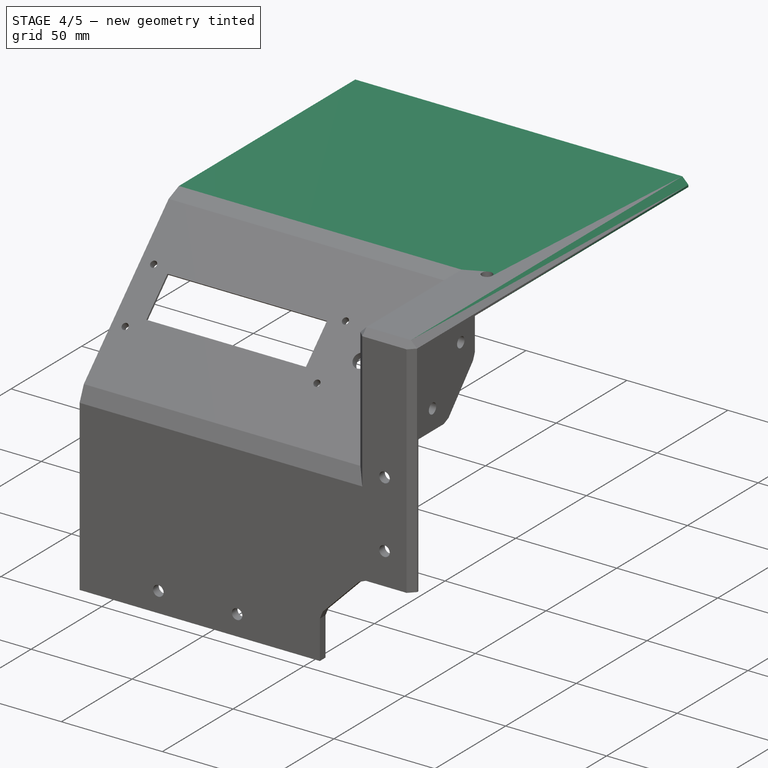
[diagram: stage 4 of 5 — iso view after this stage's code; geometry added in this stage tinted green]
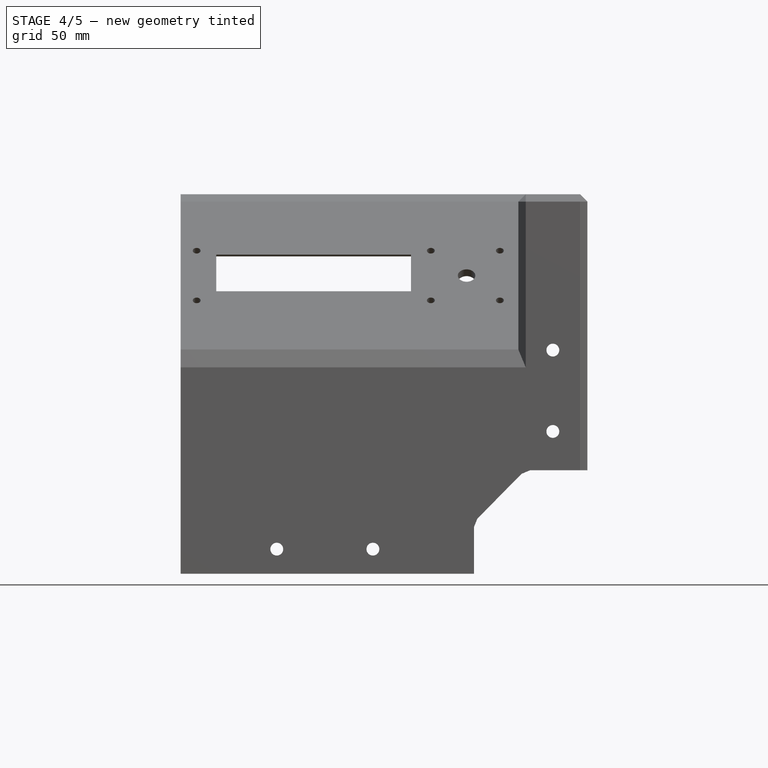
[diagram: stage 4 of 5 — front view after this stage's code; geometry added in this stage tinted green]
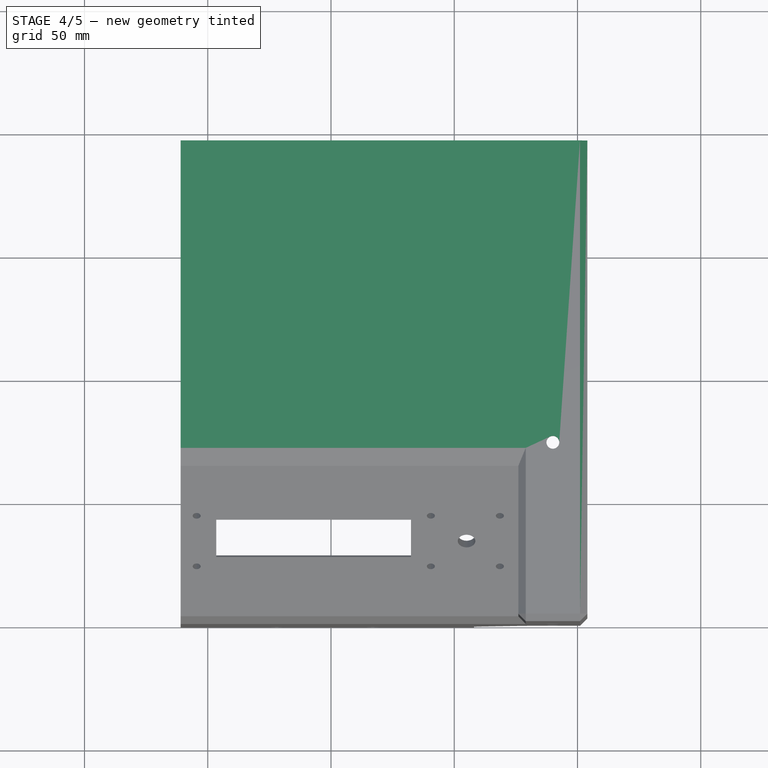
[diagram: stage 4 of 5 — top view after this stage's code; geometry added in this stage tinted green]
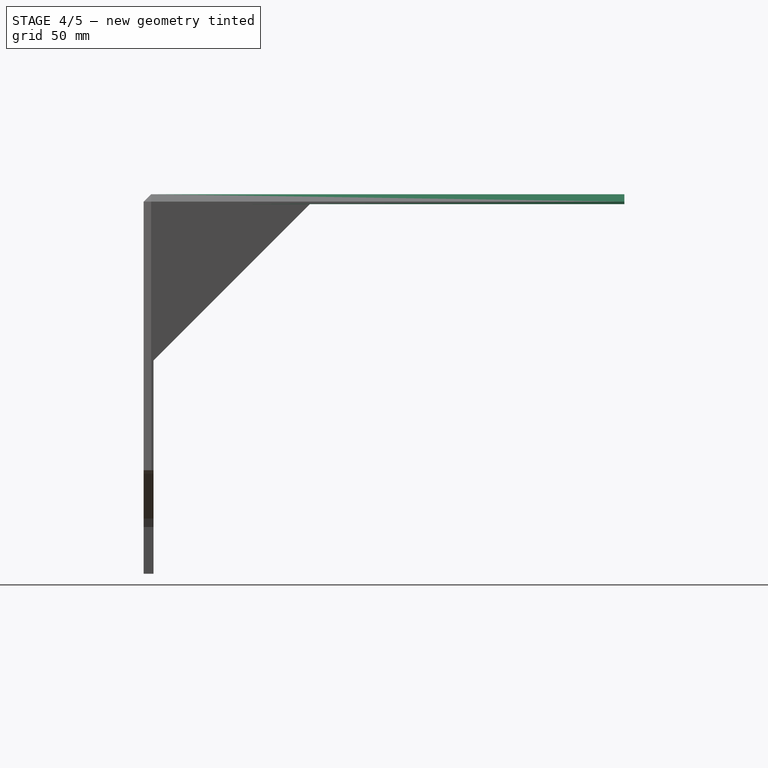
[diagram: stage 4 of 5 — right view after this stage's code; geometry added in this stage tinted green]
FEATURE [PartDesign::Chamfer] Chamfer002
  Angle = 45
  Base = -> Hole002 [Edge180,Edge182]
  BaseFeature = -> Hole002
  ChamferType = 0
  FlipDirection = false
  Placement = pos=(0,0,0) rot=(1,1,1;2.0944rad)
  Refine = true
  Size = 1.5
  Size2 = 1
  SupportTransform = false
  Suppressed = false
  UseAllEdges = false
FEATURE [PartDesign::Pocket] Pocket002
  BaseFeature = -> Chamfer002
  Direction = (1,0,1.3e-15)
  Length = 1
  Length2 = 5
  Placement = pos=(0,0,0) rot=(1,1,1;2.0944rad)
  Profile = -> Chamfer002 [Face14]
  Refine = true
  Suppressed = false
  Type = 0
FEATURE [PartDesign::Pad] Pad005
  BaseFeature = -> Pocket002
  Direction = (1.1e-15,1,-6e-16)
  Length = 53
  Length2 = 10
  Placement = pos=(0,0,0) rot=(1,1,1;2.0944rad)
  Profile = -> Pocket002 [Face30]
  Refine = true
  Suppressed = false
  Type = 0
FEATURE [PartDesign::Pad] Pad006
  BaseFeature = -> Pad005
  Direction = (1.3e-15,1,-7e-16)
  Length = 42
  Length2 = 10
  Placement = pos=(0,0,0) rot=(1,1,1;2.0944rad)
  Profile = -> Pad005 [Face60]
  Refine = true
  Suppressed = false
  Type = 0
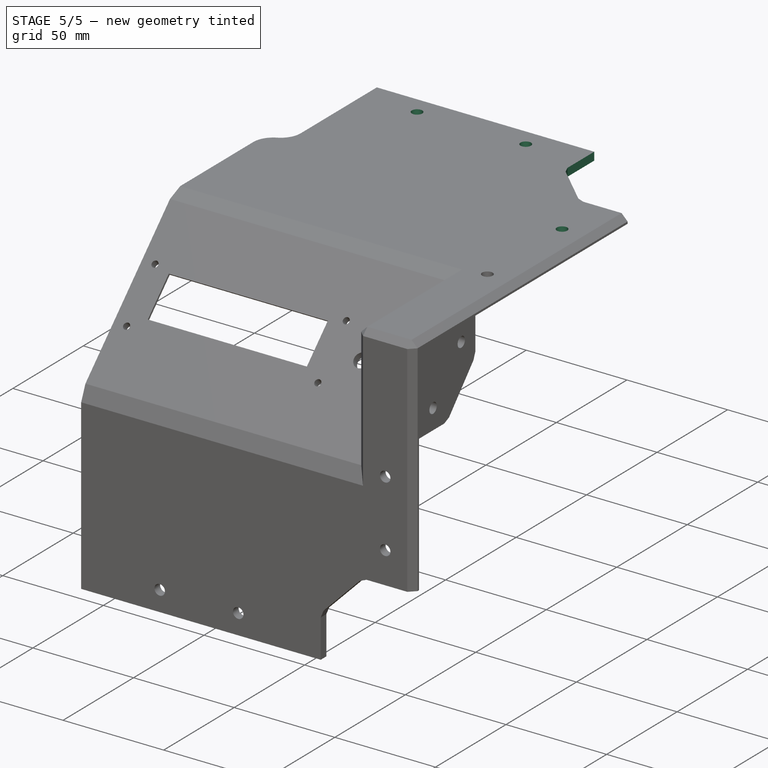
[diagram: stage 5 of 5 — iso view after this stage's code; geometry added in this stage tinted green]
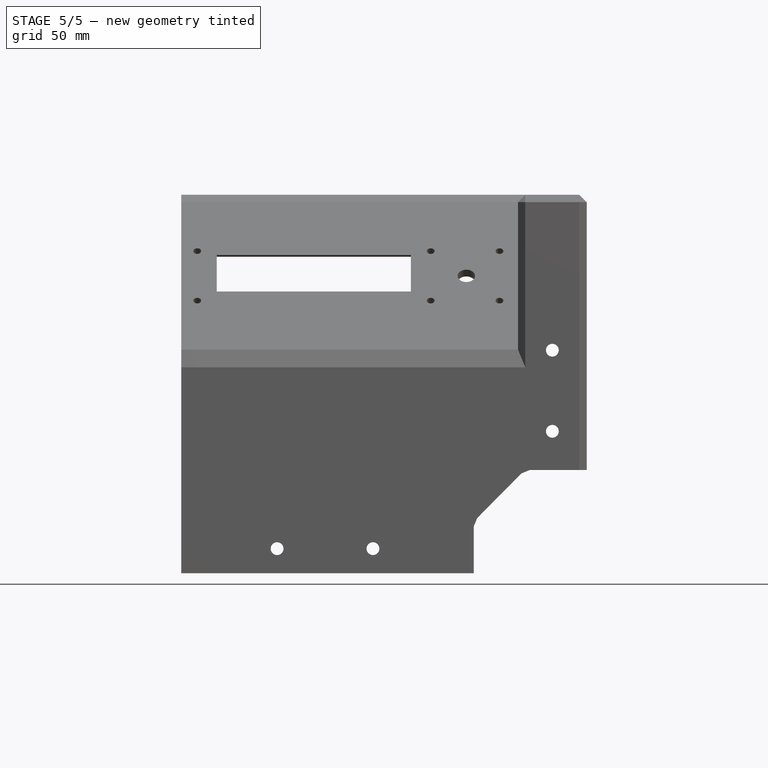
[diagram: stage 5 of 5 — front view after this stage's code; geometry added in this stage tinted green]
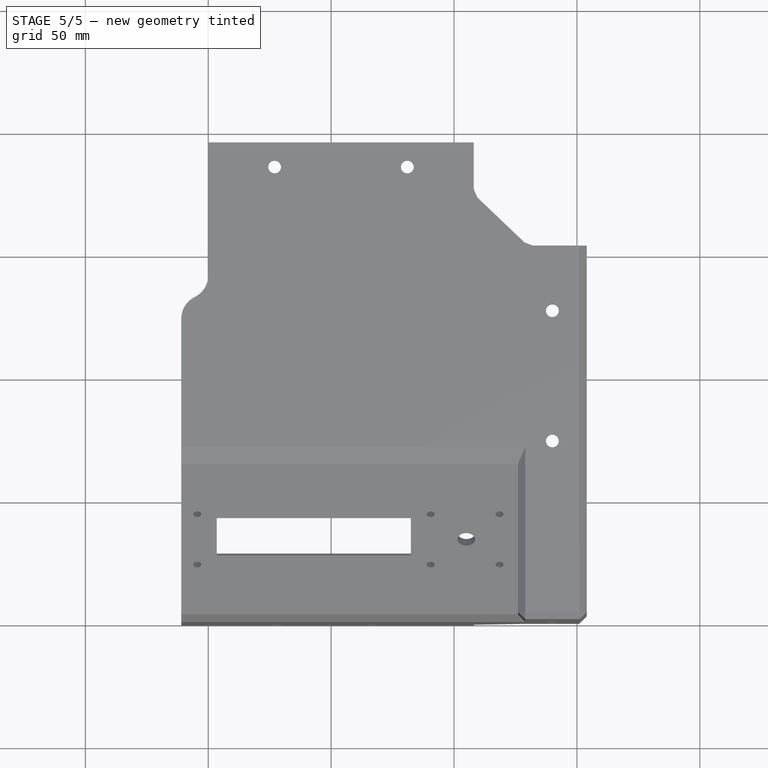
[diagram: stage 5 of 5 — top view after this stage's code; geometry added in this stage tinted green]
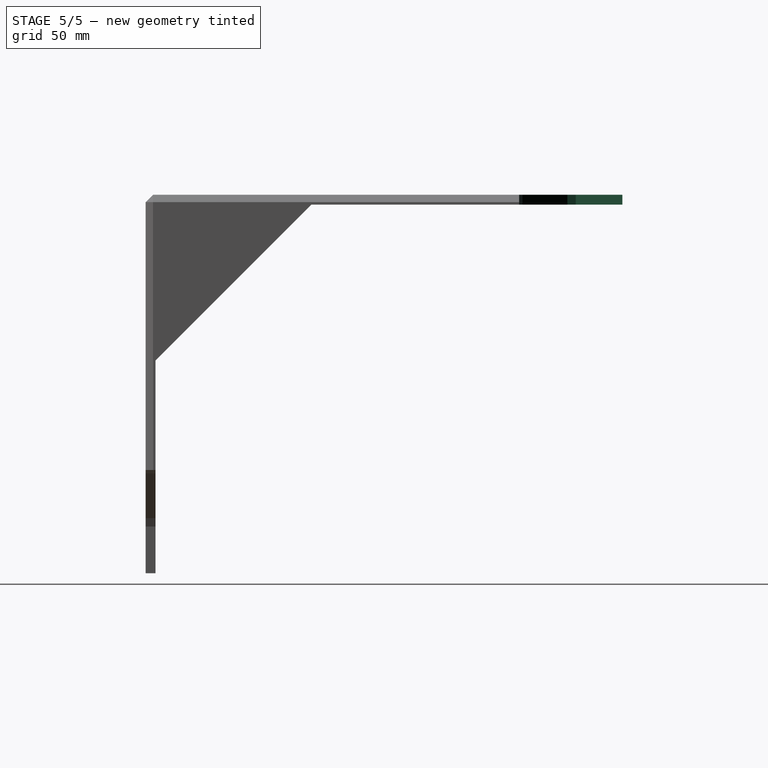
[diagram: stage 5 of 5 — right view after this stage's code; geometry added in this stage tinted green]
FEATURE [Sketcher::SketchObject] Sketch012
  ArcFitTolerance = 1e-06
  AttachmentSupport = -> [Pad006]
  FullyConstrained = true
  MakeInternals = false
  MapMode = 5
  Placement = pos=(0,0,-3.77e-14) rot=(0,0,-1;1.5708rad)
  sketch-geometry (25):
    g0: LineSegment [constr] StartX=0 StartY=0 StartZ=0 EndX=-195 EndY=0 EndZ=0
    g1: LineSegment [constr] StartX=-195 StartY=0 StartZ=0 EndX=-195 EndY=-161 EndZ=0
    g2: LineSegment [constr] StartX=-195 StartY=-161 StartZ=0 EndX=0 EndY=-161 EndZ=0
    g3: LineSegment [constr] StartX=0 StartY=-161 StartZ=0 EndX=0 EndY=0 EndZ=0
    g4: LineSegment [constr] StartX=0 StartY=0 StartZ=0 EndX=0 EndY=4 EndZ=0
    g5: LineSegment [constr] StartX=0 StartY=4 StartZ=0 EndX=-195 EndY=4 EndZ=0
    g6: LineSegment [constr] StartX=-195 StartY=4 StartZ=0 EndX=-195 EndY=0 EndZ=0
    g7: LineSegment [constr] StartX=-195 StartY=0 StartZ=0 EndX=0 EndY=0 EndZ=0
    g8: LineSegment StartX=-195 StartY=4 StartZ=0 EndX=-152 EndY=4 EndZ=0
    g9: LineSegment StartX=-195 StartY=4 StartZ=0 EndX=-195 EndY=-42 EndZ=0
    g10: LineSegment StartX=-195 StartY=-42 StartZ=0 EndX=-175.012 EndY=-42 EndZ=0
    g11: LineSegment StartX=-152 StartY=4 StartZ=0 EndX=-152 EndY=-18.007 EndZ=0
    g12: LineSegment StartX=-153.376 StartY=-21.4416 StartZ=0 EndX=-171.611 EndY=-40.5444 EndZ=0
    g13: ArcOfCircle [constr] CenterX=-156.974 CenterY=-18.007 CenterZ=0 NormalX=0 NormalY=0 NormalZ=1 AngleXU=0 Radius=4.97423 StartAngle=5.52104 EndAngle=6.28319
    g14: GeomPoint [constr] X=-152 Y=-20 Z=0
    g15: LineSegment StartX=-153.376 StartY=-21.4416 StartZ=0 EndX=-152 EndY=-18.007 EndZ=0
    g16: ArcOfCircle [constr] CenterX=-175.012 CenterY=-37.2974 CenterZ=0 NormalX=0 NormalY=0 NormalZ=1 AngleXU=0 Radius=4.70261 StartAngle=4.71239 EndAngle=5.52104
    g17: GeomPoint [constr] X=-173 Y=-42 Z=0
    g18: LineSegment StartX=-175.012 StartY=-42 StartZ=0 EndX=-171.611 EndY=-40.5444 EndZ=0
    g19: LineSegment StartX=-195 StartY=-161 StartZ=0 EndX=-130 EndY=-161 EndZ=0
    g20: LineSegment StartX=-130 StartY=-161 StartZ=0 EndX=-130 EndY=-160 EndZ=0
    g21: LineSegment StartX=-140 StartY=-150 StartZ=0 EndX=-195 EndY=-150 EndZ=0
    g22: LineSegment StartX=-195 StartY=-150 StartZ=0 EndX=-195 EndY=-161 EndZ=0
    g23: ArcOfCircle CenterX=-140 CenterY=-160 CenterZ=0 NormalX=0 NormalY=0 NormalZ=1 AngleXU=0 Radius=10 StartAngle=-1.8e-15 EndAngle=1.5708
    g24: GeomPoint [constr] X=-130 Y=-150 Z=0
  constraints (63):
    c: Coincident(g0,g1)
    c: Coincident(g1,g2)
    c: Coincident(g2,g3)
    c: Coincident(g3,g0)
    c: Horizontal(g0)
    c: Horizontal(g2)
    c: Vertical(g1)
    c: Vertical(g3)
    c: Distance(g1,g3) = 195
    c: Distance(g0,g2) = 161
    c: Coincident(g0,g-1)
    c: Coincident(g4,g5)
    c: Coincident(g5,g6)
    c: Coincident(g6,g7)
    c: Coincident(g7,g4)
    c: Vertical(g4)
    c: Vertical(g6)
    c: Horizontal(g5)
    c: Horizontal(g7)
    c: Distance(g4,g6) = 195
    c: Distance(g5,g7) = 4
    c: Coincident(g4,g0)
    c: Distance(g8) = 43
    c: Coincident(g8,g5)
    c: PointOnObject(g8,g5)
    c: Distance(g9) = 46
    c: Coincident(g9,g5)
    c: PointOnObject(g9,g1)
    c: Distance(g10,g17) = 22
    c: Coincident(g10,g9)
    c: Horizontal(g10)
    c: Distance(g11,g14) = 24
    c: Coincident(g11,g8)
    c: Vertical(g11)
    c: PointOnObject(g14,g11)
    c: PointOnObject(g14,g12)
    c: Tangent(g11,g13) = 1.5708
    c: Tangent(g12,g13) = 1.5708
    c: Coincident(g15,g11)
    c: Coincident(g15,g12)
    c: PointOnObject(g17,g12)
    c: PointOnObject(g17,g10)
    c: Tangent(g12,g16) = 1.5708
    c: Tangent(g10,g16) = -1.5708
    c: Coincident(g18,g12)
    c: Coincident(g18,g10)
    c: Distance(g15,g15) = 3.7
    c: Distance(g18,g18) = 3.7
    c: Coincident(g19,g20)
    c: Coincident(g21,g22)
    c: Coincident(g22,g19)
    c: Horizontal(g19)
    c: Horizontal(g21)
    c: Vertical(g20)
    c: Vertical(g22)
    c: Distance(g20,g22) = 65
    c: Distance(g19,g21) = 11
    c: Coincident(g19,g1)
    c: PointOnObject(g24,g21)
    c: PointOnObject(g24,g20)
    c: Tangent(g21,g23) = -1.5708
    c: Tangent(g20,g23) = -1.5708
    c: Radius(g23) = 10
FEATURE [PartDesign::Pocket] Pocket003
  BaseFeature = -> Pad006
  Direction = (0,-1.8e-15,-1)
  Length = 5
  Length2 = 5
  Placement = pos=(0,0,0) rot=(1,1,1;2.0944rad)
  Profile = -> Sketch012
  ReferenceAxis = -> Sketch012 [N_Axis]
  Refine = true
  Suppressed = false
  Type = 0
FEATURE [PartDesign::Pocket] Pocket004
  BaseFeature = -> Pocket003
  Direction = (-1.8e-15,-1,9e-16)
  Length = 1
  Length2 = 5
  Placement = pos=(0,0,0) rot=(1,1,1;2.0944rad)
  Profile = -> Pocket003 [Face53]
  Refine = true
  Suppressed = false
  Type = 0
FEATURE [Sketcher::SketchObject] Sketch013
  ArcFitTolerance = 1e-06
  AttachmentSupport = -> [Pocket004]
  FullyConstrained = true
  MakeInternals = false
  MapMode = 5
  Placement = pos=(0,0,-5.79e-14) rot=(0,0,-1;1.5708rad)
  sketch-geometry (36):
    g0: LineSegment [constr] StartX=0 StartY=0 StartZ=0 EndX=0 EndY=4 EndZ=0
    g1: LineSegment [constr] StartX=0 StartY=4 StartZ=0 EndX=-100 EndY=4 EndZ=0
    g2: LineSegment [constr] StartX=-100 StartY=4 StartZ=0 EndX=-100 EndY=-24 EndZ=0
    g3: LineSegment [constr] StartX=-100 StartY=-24 StartZ=0 EndX=0 EndY=-24 EndZ=0
    g4: LineSegment [constr] StartX=0 StartY=-24 StartZ=0 EndX=0 EndY=4 EndZ=0
    g5: LineSegment [constr] StartX=-100 StartY=-10 StartZ=0 EndX=0 EndY=-10 EndZ=0
    g6: LineSegment [constr] StartX=0 StartY=4 StartZ=0 EndX=-44 EndY=4 EndZ=0
    g7: LineSegment [constr] StartX=-44 StartY=4 StartZ=0 EndX=-44 EndY=-24 EndZ=0
    g8: LineSegment [constr] StartX=-44 StartY=-24 StartZ=0 EndX=0 EndY=-24 EndZ=0
    g9: LineSegment [constr] StartX=0 StartY=-24 StartZ=0 EndX=0 EndY=4 EndZ=0
    g10: LineSegment [constr] StartX=0 StartY=-10 StartZ=0 EndX=-72.5 EndY=-10 EndZ=0
    g11: Circle CenterX=-72.5 CenterY=-10 CenterZ=0 NormalX=0 NormalY=0 NormalZ=1 AngleXU=0 Radius=2.6
    g12: LineSegment [constr] StartX=-72.5 StartY=-10 StartZ=0 EndX=-125.5 EndY=-10 EndZ=0
    g13: Circle CenterX=-125.5 CenterY=-10 CenterZ=0 NormalX=0 NormalY=0 NormalZ=1 AngleXU=0 Radius=2.6
    g14: LineSegment [constr] StartX=0 StartY=4 StartZ=0 EndX=-194 EndY=4 EndZ=0
    g15: LineSegment [constr] StartX=-194 StartY=4 StartZ=0 EndX=-194 EndY=-161 EndZ=0
    g16: LineSegment [constr] StartX=-194 StartY=-161 StartZ=0 EndX=0 EndY=-161 EndZ=0
    g17: LineSegment [constr] StartX=0 StartY=-161 StartZ=0 EndX=0 EndY=4 EndZ=0
    g18: LineSegment [constr] StartX=-194 StartY=4 StartZ=0 EndX=-194 EndY=-161 EndZ=0
    g19: LineSegment [constr] StartX=-194 StartY=-161 StartZ=0 EndX=-174 EndY=-161 EndZ=0
    g20: LineSegment [constr] StartX=-174 StartY=-161 StartZ=0 EndX=-174 EndY=4 EndZ=0
    g21: LineSegment [constr] StartX=-174 StartY=4 StartZ=0 EndX=-194 EndY=4 EndZ=0
    g22: LineSegment [constr] StartX=-194 StartY=4 StartZ=0 EndX=-194 EndY=-42 EndZ=0
    g23: LineSegment [constr] StartX=-194 StartY=-42 StartZ=0 EndX=-174 EndY=-42 EndZ=0
    g24: LineSegment [constr] StartX=-174 StartY=-42 StartZ=0 EndX=-174 EndY=4 EndZ=0
    g25: LineSegment [constr] StartX=-174 StartY=4 StartZ=0 EndX=-194 EndY=4 EndZ=0
    g26: LineSegment [constr] StartX=-194 StartY=-161 StartZ=0 EndX=-174 EndY=-161 EndZ=0
    g27: LineSegment [constr] StartX=-174 StartY=-161 StartZ=0 EndX=-174 EndY=-150 EndZ=0
    g28: LineSegment [constr] StartX=-174 StartY=-150 StartZ=0 EndX=-194 EndY=-150 EndZ=0
    g29: LineSegment [constr] StartX=-194 StartY=-150 StartZ=0 EndX=-194 EndY=-161 EndZ=0
    g30: LineSegment [constr] StartX=-184 StartY=-42 StartZ=0 EndX=-184 EndY=-150 EndZ=0
    g31: LineSegment [constr] StartX=-184 StartY=-42 StartZ=0 EndX=-184 EndY=-96 EndZ=0
    g32: LineSegment [constr] StartX=-184 StartY=-42 StartZ=0 EndX=-184 EndY=-69 EndZ=0
    g33: LineSegment [constr] StartX=-184 StartY=-150 StartZ=0 EndX=-184 EndY=-123 EndZ=0
    g34: Circle CenterX=-184 CenterY=-69 CenterZ=0 NormalX=0 NormalY=0 NormalZ=1 AngleXU=0 Radius=2.6
    g35: Circle CenterX=-184 CenterY=-123 CenterZ=0 NormalX=0 NormalY=0 NormalZ=1 AngleXU=0 Radius=2.6
  constraints (96):
    c: Distance(g0) = 4
    c: Coincident(g0,g-1)
    c: PointOnObject(g0,g-2)
    c: Coincident(g1,g2)
    c: Coincident(g2,g3)
    c: Coincident(g3,g4)
    c: Coincident(g4,g1)
    c: Horizontal(g1)
    c: Horizontal(g3)
    c: Vertical(g2)
    c: Vertical(g4)
    c: Distance(g2,g4) = 100
    c: Distance(g1,g3) = 28
    c: Coincident(g1,g0)
    c: Symmetric(g2,g2,g5)
    c: Symmetric(g4,g4,g5)
    c: Coincident(g6,g7)
    c: Coincident(g7,g8)
    c: Coincident(g8,g9)
    c: Coincident(g9,g6)
    c: Horizontal(g6)
    c: Horizontal(g8)
    c: Vertical(g7)
    c: Vertical(g9)
    c: Distance(g7,g9) = 44
    c: Coincident(g6,g0)
    c: PointOnObject(g7,g3)
    c: Distance(g10) = 72.5
    c: Coincident(g10,g5)
    c: PointOnObject(g10,g5)
    c: Diameter(g11) = 5.2
    c: Coincident(g11,g10)
    c: Distance(g12) = 53
    c: Coincident(g12,g10)
    c: Horizontal(g12)
    c: Diameter(g13) = 5.2
    c: Coincident(g13,g12)
    c: Coincident(g14,g15)
    c: Coincident(g15,g16)
    c: Coincident(g16,g17)
    c: Coincident(g17,g14)
    c: Horizontal(g14)
    c: Horizontal(g16)
    c: Vertical(g15)
    c: Vertical(g17)
    c: Distance(g15,g17) = 194
    c: Distance(g14,g16) = 165
    c: Coincident(g14,g0)
    c: Coincident(g18,g19)
    c: Coincident(g19,g20)
    c: Coincident(g20,g21)
    c: Coincident(g21,g18)
    c: Vertical(g18)
    c: Vertical(g20)
    c: Horizontal(g19)
    c: Horizontal(g21)
    c: Distance(g18,g20) = 20
    c: Coincident(g18,g14)
    c: PointOnObject(g19,g16)
    c: Coincident(g22,g23)
    c: Coincident(g23,g24)
    c: Coincident(g24,g25)
    c: Coincident(g25,g22)
    c: Vertical(g22)
    c: Vertical(g24)
    c: Horizontal(g23)
    c: Horizontal(g25)
    c: Distance(g23,g25) = 46
    c: Coincident(g22,g14)
    c: PointOnObject(g23,g20)
    c: Coincident(g26,g27)
    c: Coincident(g27,g28)
    c: Coincident(g28,g29)
    c: Coincident(g29,g26)
    c: Horizontal(g26)
    c: Horizontal(g28)
    c: Vertical(g27)
    c: Vertical(g29)
    c: Distance(g26,g28) = 11
    c: Coincident(g26,g15)
    c: PointOnObject(g27,g20)
    c: PointOnObject(g30,g23)
    c: Symmetric(g28,g28,g30)
    c: Vertical(g30)
    c: Coincident(g31,g30)
    c: Symmetric(g30,g30,g31)
    c: Distance(g32) = 27
    c: Coincident(g32,g30)
    c: PointOnObject(g32,g30)
    c: Distance(g33) = 27
    c: Coincident(g33,g30)
    c: PointOnObject(g33,g30)
    c: Diameter(g34) = 5.2
    c: Coincident(g34,g32)
    c: Diameter(g35) = 5.2
    c: Coincident(g35,g33)
FEATURE [PartDesign::Pocket] Pocket005
  BaseFeature = -> Pocket004
  Direction = (1.5e-15,-2e-15,-1)
  Length = 5
  Length2 = 5
  Placement = pos=(0,0,0) rot=(1,1,1;2.0944rad)
  Profile = -> Sketch013
  ReferenceAxis = -> Sketch013 [N_Axis]
  Refine = true
  Suppressed = false
  Type = 0
FEATURE [PartDesign::Fillet] Fillet
  Base = -> Pocket005 [Edge36]
  BaseFeature = -> Pocket005
  Placement = pos=(0,0,0) rot=(1,1,1;2.0944rad)
  Radius = 10
  Refine = true
  SupportTransform = false
  Suppressed = false
  UseAllEdges = false
FEATURE [PartDesign::Body] Body
  AllowCompound = false
  Group = -> [Sketch,Pad,Sketch001,Pad001,Sketch002,Pad002,Sketch003,Pad003,Sketch004,Pocket,Sketch005,Sketch006,Hole,Sketch007,Hole001,Chamfer,Chamfer001,Sketch008,Pocket001,Sketch009,Sketch010,Pad004,Sketch011,Hole002,Chamfer002,Pocket002,Pad005,Pad006,Sketch012,Pocket003,Pocket004,Sketch013,Pocket005,Fillet]
  Origin = -> Origin
  Tip = -> Fillet
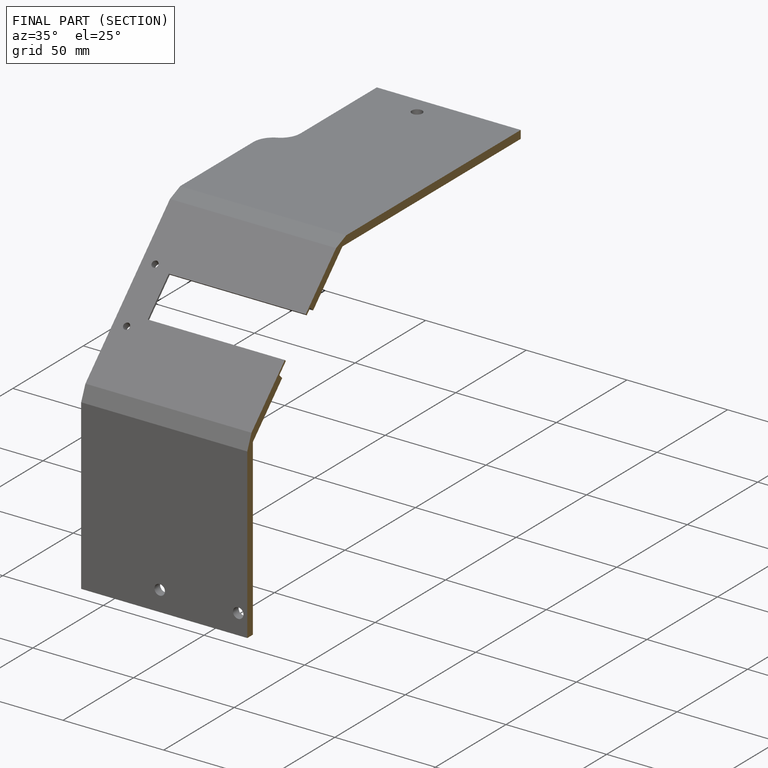
[diagram: finished part — half-section view (interior)]
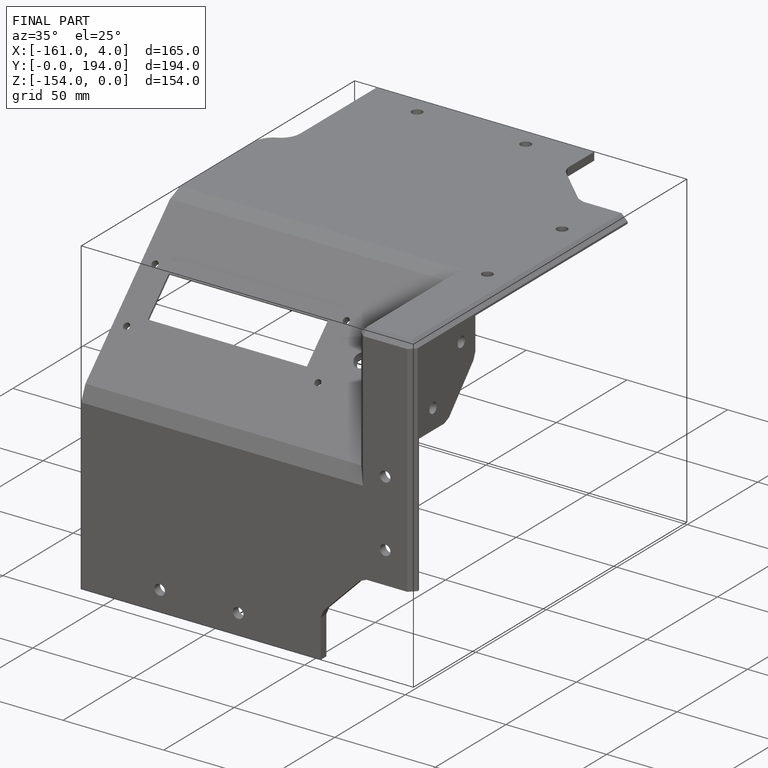
[diagram: finished part — iso view with bounding-box wireframe]
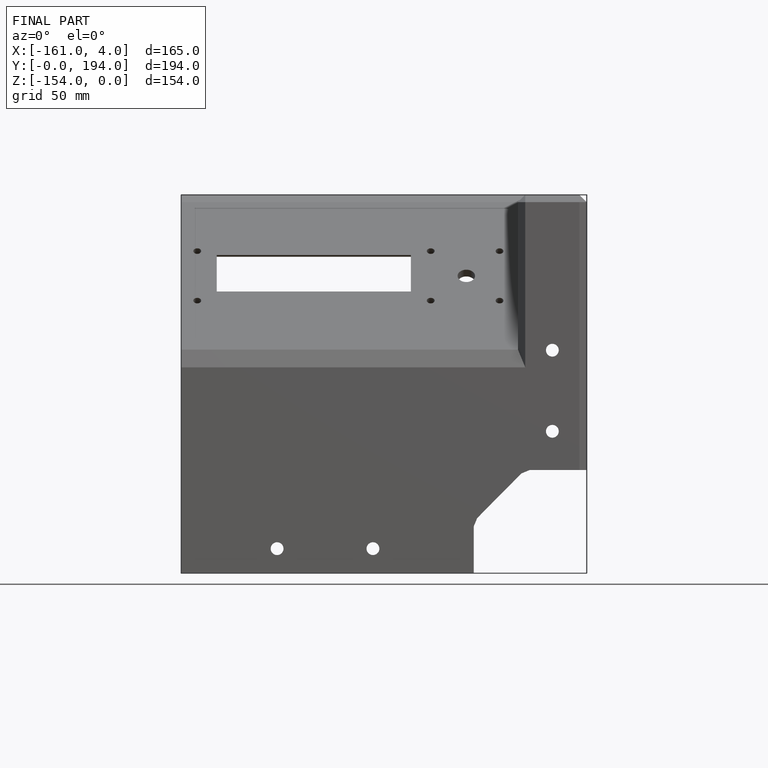
[diagram: finished part — front view with bounding-box wireframe]
